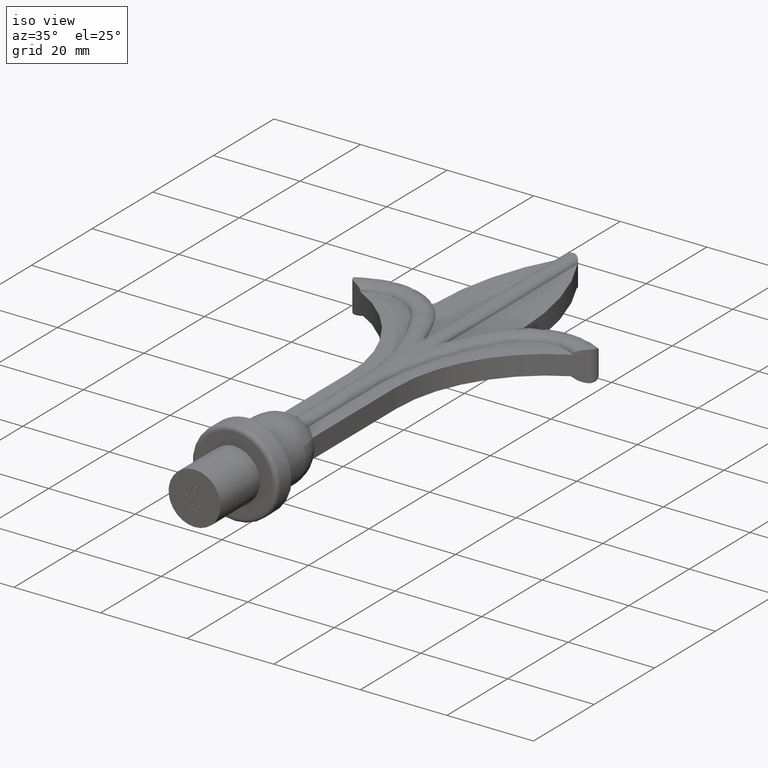
[diagram: clean part render]
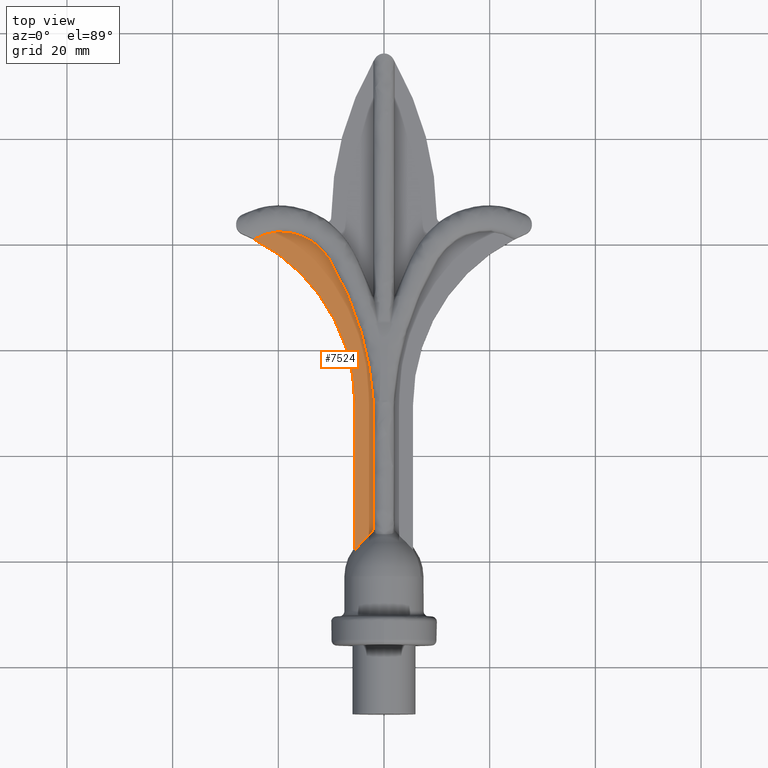
[diagram: tour spotlight — one face highlighted and labeled with its STEP entity id]
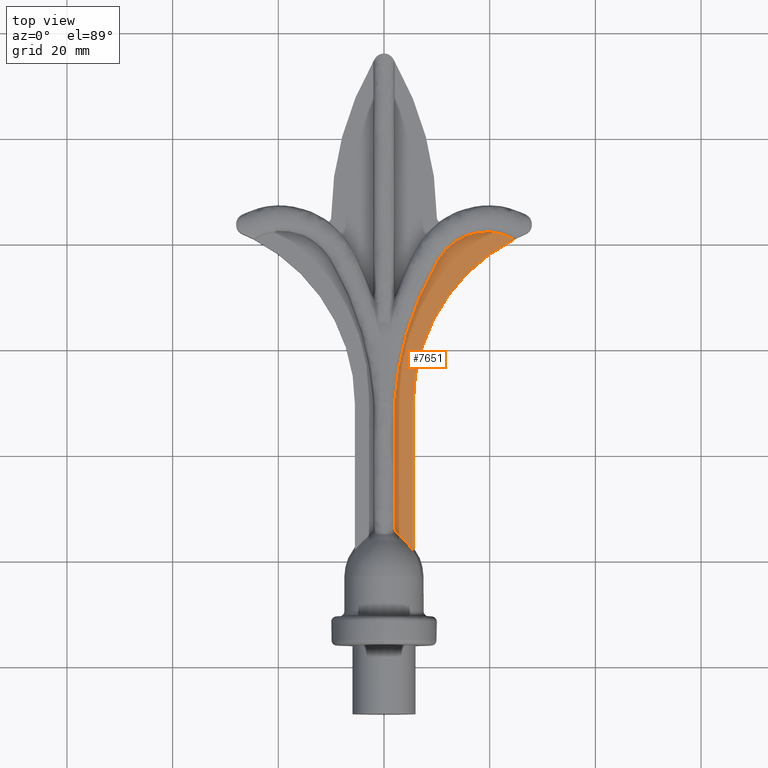
[diagram: tour spotlight — one face highlighted and labeled with its STEP entity id]
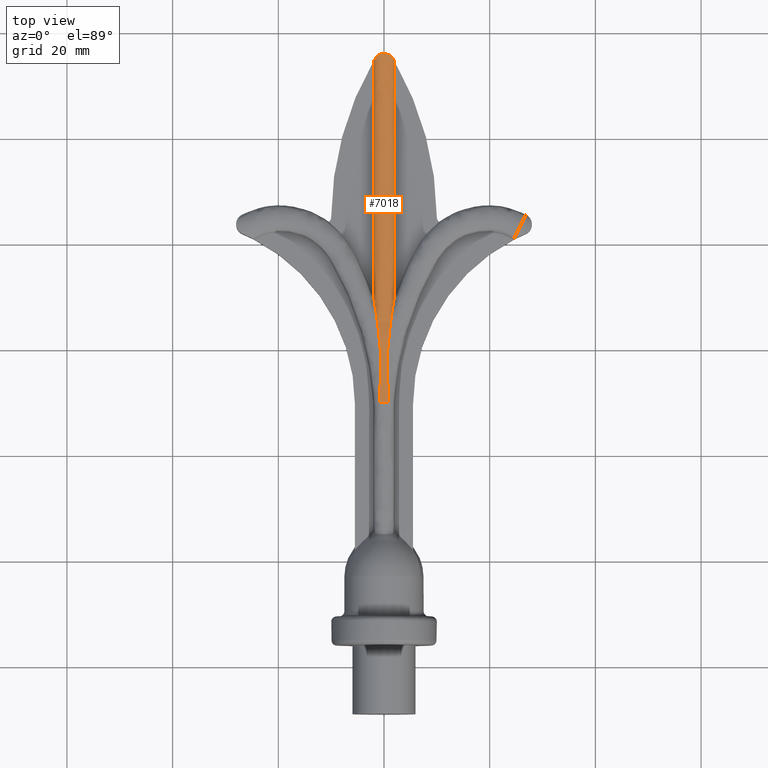
[diagram: tour spotlight — one face highlighted and labeled with its STEP entity id]
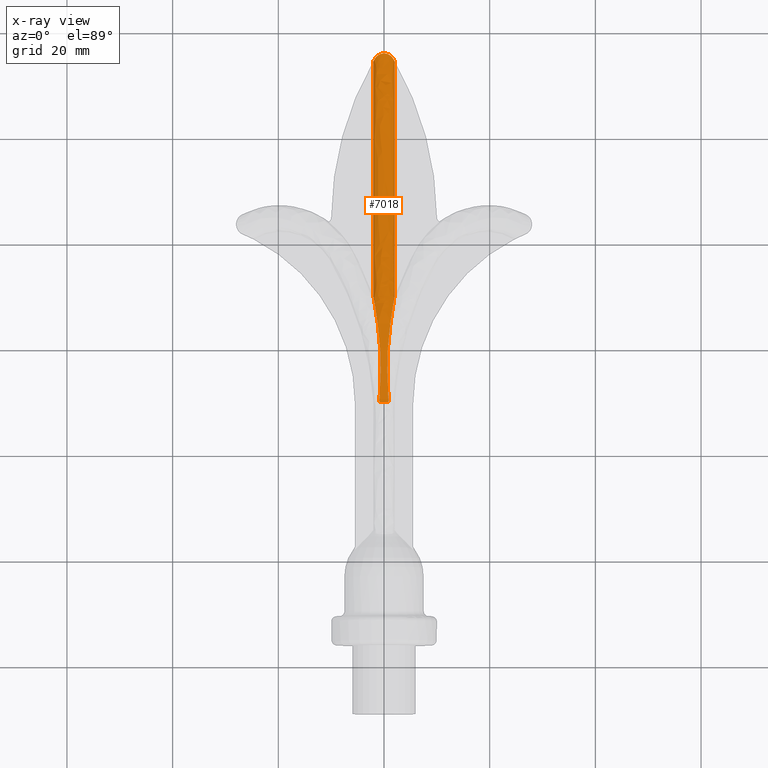
[diagram: x-ray of the same camera — body ghosted, this tour face saturated]
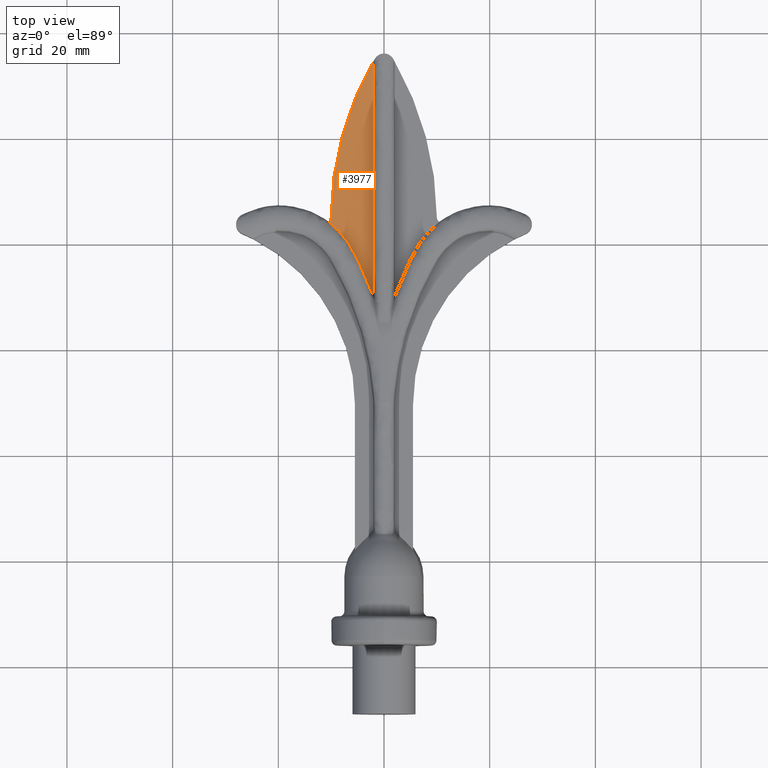
[diagram: tour spotlight — one face highlighted and labeled with its STEP entity id]
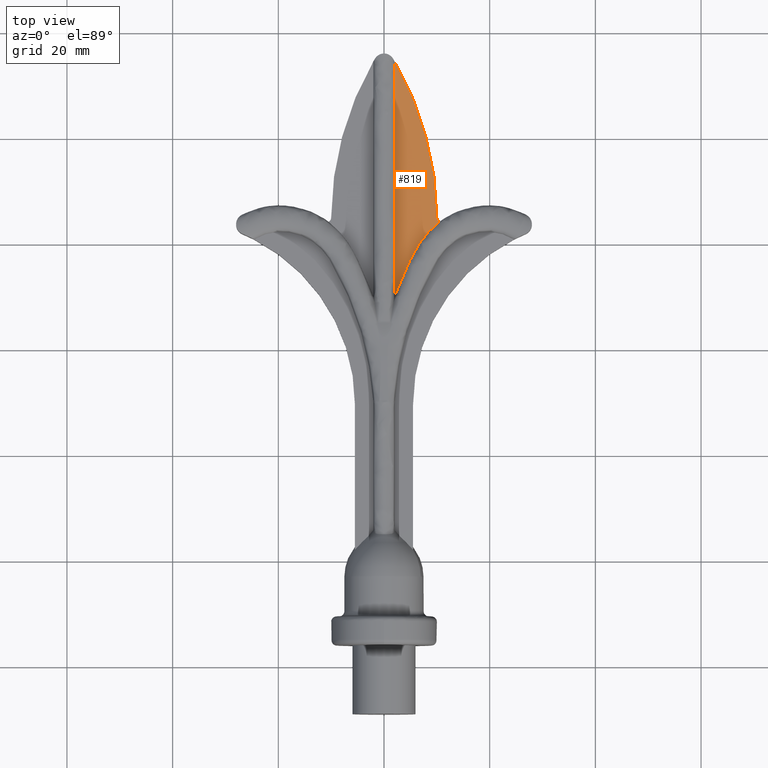
[diagram: tour spotlight — one face highlighted and labeled with its STEP entity id]
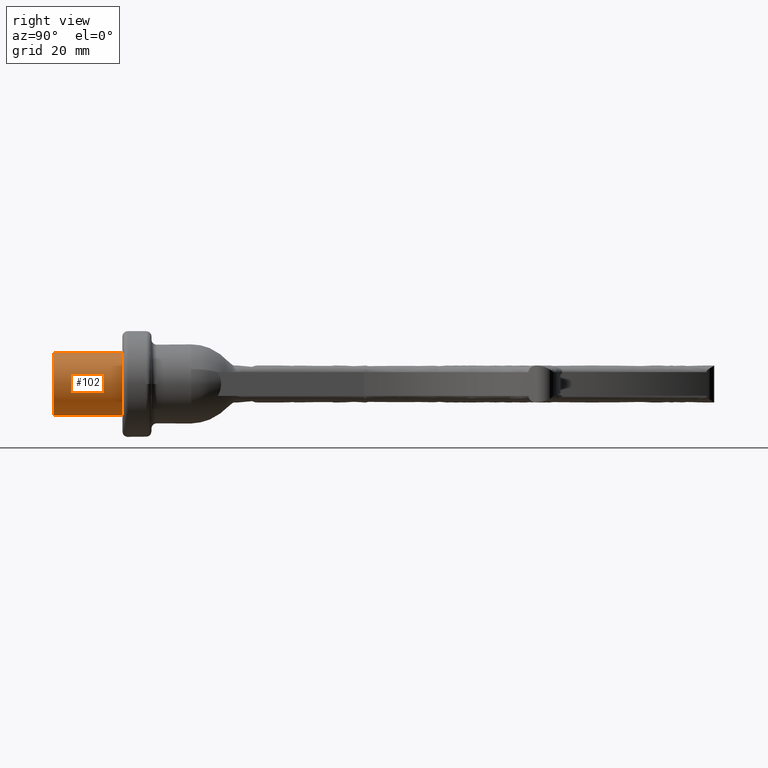
[diagram: tour spotlight — one face highlighted and labeled with its STEP entity id]
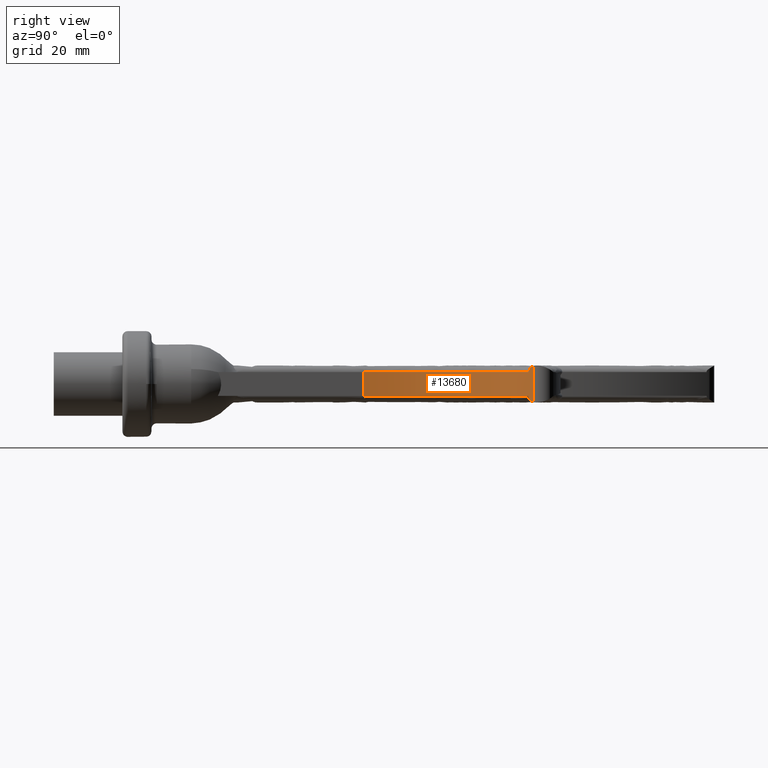
[diagram: tour spotlight — one face highlighted and labeled with its STEP entity id]
A machine part: a face-by-face anatomy tour. The part has 271 B-rep faces; the first image is the clean iso view, then the 7 largest visible faces are spotlighted one at a time (largest first), each with its STEP entity span.

Face 1 — top view, entity #7524. In plain terms, the highlighted planar face has unit normal (0, 0, -1).
Definition (entity closure, byte-faithful):
#134 = DIRECTION ( 'NONE',  ( 1.000000000000000000, 0.000000000000000000, 0.000000000000000000 ) ) ;
#661 = AXIS2_PLACEMENT_3D ( 'NONE', #6911, #7853, #134 ) ;
#676 = VERTEX_POINT ( 'NONE', #13874 ) ;
#781 = CARTESIAN_POINT ( 'NONE',  ( -14.76337510132776742, 21.17412777837628823, 2.249999999999997780 ) ) ;
#833 = CARTESIAN_POINT ( 'NONE',  ( -16.04736835590449573, 21.71527909538065515, 2.250000000000001776 ) ) ;
#882 = CARTESIAN_POINT ( 'NONE',  ( -1.999999999999999556, -34.15704797630281320, 2.250000000000000000 ) ) ;
#936 = CARTESIAN_POINT ( 'NONE',  ( -19.72413120687838273, 22.27856710356394032, 2.250000000000000000 ) ) ;
#982 = CARTESIAN_POINT ( 'NONE',  ( -13.14684680056945609, 20.21926707694568748, 2.250000000000000000 ) ) ;
#1074 = ORIENTED_EDGE ( 'NONE', *, *, #6359, .F. ) ;
#1264 = ORIENTED_EDGE ( 'NONE', *, *, #3003, .F. ) ;
#1325 = CARTESIAN_POINT ( 'NONE',  ( -4.183302087937226688, -36.50000059983787537, 2.250000000000000000 ) ) ;
#1376 = CARTESIAN_POINT ( 'NONE',  ( -5.102464988398763168, -37.40998315238685024, 2.250000000000000000 ) ) ;
#1439 = DIRECTION ( 'NONE',  ( 0.000000000000000000, -1.000000000000000000, 0.000000000000000000 ) ) ;
#1914 = EDGE_LOOP ( 'NONE', ( #3522, #9659, #1074, #13823, #14377, #1264 ) ) ;
#1934 = CARTESIAN_POINT ( 'NONE',  ( -21.12685482937731152, 22.14551076079942149, 2.249999999999998668 ) ) ;
#1978 = CARTESIAN_POINT ( 'NONE',  ( -5.981575602953722814, 8.281968525459351582, 2.250000000000000444 ) ) ;
#2035 = CARTESIAN_POINT ( 'NONE',  ( -23.77879521761375159, 21.27693553004967697, 2.249999999999995559 ) ) ;
#2088 = CARTESIAN_POINT ( 'NONE',  ( -11.14895665378619682, 18.26262553370780140, 2.250000000000009770 ) ) ;
#2134 = CARTESIAN_POINT ( 'NONE',  ( -2.000006093207118418, -9.999999999999998224, 2.250000000000134559 ) ) ;
#3003 = EDGE_CURVE ( 'NONE', #3359, #3795, #4806, .T. ) ;
#3067 = VECTOR ( 'NONE', #1439, 1000.000000000000000 ) ;
#3093 = CARTESIAN_POINT ( 'NONE',  ( -3.291206529742098930, -0.7055149666553134358, 2.249999999999999112 ) ) ;
#3103 = CARTESIAN_POINT ( 'NONE',  ( -3.773804087741206459, -36.15007595315656630, 2.250000000000000444 ) ) ;
#3188 = CARTESIAN_POINT ( 'NONE',  ( -24.19831013008752407, 21.06089616784457874, 2.250000000000000888 ) ) ;
#3233 = CARTESIAN_POINT ( 'NONE',  ( -2.132571979410398555, -8.126393834641481462, 2.250000000000269562 ) ) ;
#3253 = EDGE_CURVE ( 'NONE', #3359, #6767, #8502, .T. ) ;
#3359 = VERTEX_POINT ( 'NONE', #8422 ) ;
#3522 = ORIENTED_EDGE ( 'NONE', *, *, #3253, .T. ) ;
#3795 = VERTEX_POINT ( 'NONE', #5019 ) ;
#4090 = CARTESIAN_POINT ( 'NONE',  ( -4.183302087937226688, -36.50000059983787537, 2.250000000000000000 ) ) ;
#4267 = CARTESIAN_POINT ( 'NONE',  ( -24.61697314110987378, 20.84523556333763850, 2.254171646362637116 ) ) ;
#4292 = CARTESIAN_POINT ( 'NONE',  ( -5.499999999999991118, -10.34335035933024827, 2.250000000000000000 ) ) ;
#4359 = CARTESIAN_POINT ( 'NONE',  ( -23.13504436214022064, 21.56360661313473770, 2.249999999999995115 ) ) ;
#4638 = CARTESIAN_POINT ( 'NONE',  ( -4.663177568037719212, -36.93531094303977369, 2.250000000000000000 ) ) ;
#4806 = LINE ( 'NONE', #4292, #13085 ) ;
#5019 = CARTESIAN_POINT ( 'NONE',  ( -5.499999999999991118, -10.34335035933024827, 2.250000000000000000 ) ) ;
#5263 = CARTESIAN_POINT ( 'NONE',  ( -1.999999999999999556, -34.15704797630281320, 2.250000000000000000 ) ) ;
#5390 = CARTESIAN_POINT ( 'NONE',  ( -8.313999916599685847, 13.40892815939250760, 2.250000000000000444 ) ) ;
#5531 = CARTESIAN_POINT ( 'NONE',  ( -2.000006093207118418, -9.999999999999998224, 2.250000000000134559 ) ) ;
#5603 = DIRECTION ( 'NONE',  ( 1.000000000000000000, 0.000000000000000000, 0.000000000000000000 ) ) ;
#5680 = B_SPLINE_CURVE_WITH_KNOTS ( 'NONE', 3,
 ( #4267, #3188, #2035, #4359, #14411, #7616, #9947, #12152, #1934, #13352, #936, #12200, #6574, #9848, #7668, #833, #13450, #781, #14460, #982, #11015, #8846, #2088, #8794, #13247, #10046, #6678, #5390, #8742, #9997, #1978, #7570, #13299, #3093, #11065, #11157, #3233, #2134 ),
 .UNSPECIFIED., .F., .F.,
 ( 4, 2, 2, 2, 2, 2, 2, 2, 2, 2, 2, 2, 2, 2, 2, 2, 2, 2, 4 ),
 ( 1.599647270592087204E-07, 0.001412384367972311511, 0.002118496569594932512, 0.002824608771217553948, 0.004236833174462796385, 0.005649057577708038388, 0.007061281980953282127, 0.008473506384198524130, 0.009885730787443767001, 0.01129795519068900987, 0.01412240399717949388, 0.01553462840042473155, 0.01694685280366997268, 0.01977130161016044455, 0.02259575041665091641, 0.02824464802963186014, 0.03389354564261280733, 0.03954244325559375106, 0.04519134086857468785 ),
 .UNSPECIFIED. ) ;
#6359 = EDGE_CURVE ( 'NONE', #6958, #6951, #12355, .T. ) ;
#6574 = CARTESIAN_POINT ( 'NONE',  ( -18.32851251397507042, 22.22197669324629743, 2.249999999999997335 ) ) ;
#6678 = CARTESIAN_POINT ( 'NONE',  ( -9.169502339526454548, 15.08077979952537540, 2.250000000000001332 ) ) ;
#6767 = VERTEX_POINT ( 'NONE', #9509 ) ;
#6868 = PLANE ( 'NONE',  #661 ) ;
#6911 = CARTESIAN_POINT ( 'NONE',  ( 4.428493575385978843E-16, 54.00000000000000000, 2.250000000000000000 ) ) ;
#6951 = VERTEX_POINT ( 'NONE', #882 ) ;
#6958 = VERTEX_POINT ( 'NONE', #5531 ) ;
#6976 = EDGE_CURVE ( 'NONE', #676, #6958, #5680, .T. ) ;
#7524 = ADVANCED_FACE ( 'NONE', ( #14618 ), #6868, .F. ) ;
#7570 = CARTESIAN_POINT ( 'NONE',  ( -4.725754925820213614, 4.741299643282160581, 2.250000000000000000 ) ) ;
#7616 = CARTESIAN_POINT ( 'NONE',  ( -22.48052273371741450, 21.81134387635706062, 2.249999999999997780 ) ) ;
#7668 = CARTESIAN_POINT ( 'NONE',  ( -16.94133092385697736, 21.97797578725353773, 2.250000000000002220 ) ) ;
#7853 = DIRECTION ( 'NONE',  ( 0.000000000000000000, 0.000000000000000000, -1.000000000000000000 ) ) ;
#8094 = B_SPLINE_CURVE_WITH_KNOTS ( 'NONE', 3,
 ( #4090, #3103, #11971, #12164, #13107, #5263 ),
 .UNSPECIFIED., .F., .F.,
 ( 4, 2, 4 ),
 ( 3.049906857657526483E-07, 0.001601140582204586002, 0.003201976173723405927 ),
 .UNSPECIFIED. ) ;
#8179 = CARTESIAN_POINT ( 'NONE',  ( -5.309586929943846734, -37.66162718015450395, 2.250000000000000444 ) ) ;
#8422 = CARTESIAN_POINT ( 'NONE',  ( -5.499999999999995559, -37.92188935281078699, 2.250000000000000000 ) ) ;
#8502 = B_SPLINE_CURVE_WITH_KNOTS ( 'NONE', 3,
 ( #13773, #8179, #1376, #4638, #11576, #1325 ),
 .UNSPECIFIED., .F., .F.,
 ( 4, 2, 4 ),
 ( 0.005407699196652137469, 0.006367768122236821572, 0.007327837047821505675 ),
 .UNSPECIFIED. ) ;
#8742 = CARTESIAN_POINT ( 'NONE',  ( -7.897798575652227981, 12.56700727343634760, 2.250000000000000444 ) ) ;
#8794 = CARTESIAN_POINT ( 'NONE',  ( -10.59220191886514684, 17.50875892013686652, 2.250000000000008438 ) ) ;
#8846 = CARTESIAN_POINT ( 'NONE',  ( -11.45185035667598861, 18.62602086206925733, 2.250000000000036415 ) ) ;
#9101 = EDGE_CURVE ( 'NONE', #3795, #676, #9331, .T. ) ;
#9331 = CIRCLE ( 'NONE', #12717, 35.00000000000000000 ) ;
#9509 = CARTESIAN_POINT ( 'NONE',  ( -4.183302087937226688, -36.50000059983787537, 2.250000000000000000 ) ) ;
#9659 = ORIENTED_EDGE ( 'NONE', *, *, #12658, .T. ) ;
#9848 = CARTESIAN_POINT ( 'NONE',  ( -17.40307058314913391, 22.08023255681069585, 2.249999999999997335 ) ) ;
#9947 = CARTESIAN_POINT ( 'NONE',  ( -22.25867018858491164, 21.88062543786392666, 2.250000000000000444 ) ) ;
#9997 = CARTESIAN_POINT ( 'NONE',  ( -6.703008912361073435, 10.01589497759060521, 2.250000000000000000 ) ) ;
#10046 = CARTESIAN_POINT ( 'NONE',  ( -9.606056869822205968, 15.91418307517285236, 2.250000000000003553 ) ) ;
#10104 = DIRECTION ( 'NONE',  ( -0.000000000000000000, 0.000000000000000000, 1.000000000000000000 ) ) ;
#11015 = CARTESIAN_POINT ( 'NONE',  ( -12.42029254657042969, 19.63991412580459084, 2.250000000000036859 ) ) ;
#11065 = CARTESIAN_POINT ( 'NONE',  ( -2.919986943536946544, -2.547756134048474674, 2.250000000000001776 ) ) ;
#11157 = CARTESIAN_POINT ( 'NONE',  ( -2.337768139618806806, -6.257629043695626336, 2.250000000000001332 ) ) ;
#11215 = CARTESIAN_POINT ( 'NONE',  ( -40.49999999999999289, -10.34335035933024471, 2.250000000000000000 ) ) ;
#11576 = CARTESIAN_POINT ( 'NONE',  ( -4.430159336345254495, -36.71094530625479990, 2.250000000000000000 ) ) ;
#11971 = CARTESIAN_POINT ( 'NONE',  ( -3.391188477392503842, -35.77624323928026939, 2.250000000000000000 ) ) ;
#12077 = DIRECTION ( 'NONE',  ( 1.709774086213724751E-16, 1.000000000000000000, 0.000000000000000000 ) ) ;
#12152 = CARTESIAN_POINT ( 'NONE',  ( -21.58554758046971145, 22.06112451901470095, 2.250000000000000888 ) ) ;
#12164 = CARTESIAN_POINT ( 'NONE',  ( -2.668189967925956640, -34.99101781393565602, 2.250000000000000000 ) ) ;
#12200 = CARTESIAN_POINT ( 'NONE',  ( -18.79269039057967561, 22.26236030581272018, 2.250000000000000000 ) ) ;
#12355 = LINE ( 'NONE', #12704, #3067 ) ;
#12658 = EDGE_CURVE ( 'NONE', #6767, #6951, #8094, .T. ) ;
#12704 = CARTESIAN_POINT ( 'NONE',  ( -1.999999999999999556, 64.00000000000000000, 2.250000000000000000 ) ) ;
#12717 = AXIS2_PLACEMENT_3D ( 'NONE', #11215, #10104, #5603 ) ;
#13085 = VECTOR ( 'NONE', #12077, 1000.000000000000000 ) ;
#13107 = CARTESIAN_POINT ( 'NONE',  ( -2.328282237700450175, -34.57920250723412181, 2.250000000000000000 ) ) ;
#13247 = CARTESIAN_POINT ( 'NONE',  ( -10.33624176415837326, 17.11654057984210198, 2.250000000000003109 ) ) ;
#13299 = CARTESIAN_POINT ( 'NONE',  ( -4.191660543171381370, 2.939109039108050325, 2.250000000000000444 ) ) ;
#13352 = CARTESIAN_POINT ( 'NONE',  ( -20.19289493986696016, 22.25437071873053441, 2.249999999999998224 ) ) ;
#13450 = CARTESIAN_POINT ( 'NONE',  ( -15.61195498000185644, 21.55405025663272056, 2.249999999999998668 ) ) ;
#13773 = CARTESIAN_POINT ( 'NONE',  ( -5.499999999999995559, -37.92188935281078699, 2.250000000000000000 ) ) ;
#13823 = ORIENTED_EDGE ( 'NONE', *, *, #6976, .F. ) ;
#13874 = CARTESIAN_POINT ( 'NONE',  ( -24.61697314110987378, 20.84523556333763850, 2.254171646362637116 ) ) ;
#14377 = ORIENTED_EDGE ( 'NONE', *, *, #9101, .F. ) ;
#14411 = CARTESIAN_POINT ( 'NONE',  ( -22.91865372825261105, 21.65263170368233503, 2.249999999999997335 ) ) ;
#14460 = CARTESIAN_POINT ( 'NONE',  ( -14.34844947528617709, 20.95491050503660091, 2.249999999999999556 ) ) ;
#14618 = FACE_OUTER_BOUND ( 'NONE', #1914, .T. ) ;

Face 2 — top view, entity #7651. In plain terms, the highlighted planar face has unit normal (-0, 0, -1).
Definition (entity closure, byte-faithful):
#177 = CARTESIAN_POINT ( 'NONE',  ( 5.499999999999995559, -37.92188935281078699, 2.250000000000000000 ) ) ;
#327 = B_SPLINE_CURVE_WITH_KNOTS ( 'NONE', 3,
 ( #4505, #12297, #8937, #6717, #6763, #3381, #12349, #10037, #13542, #974, #3482, #8988, #5577, #1079, #1024, #13636, #8884, #5634, #1182, #13491, #2328, #14633, #2229, #6671, #11344, #6816, #9042, #10083, #10130, #2278, #7910, #2127, #6872, #1134, #4606, #11294, #10229, #11151 ),
 .UNSPECIFIED., .F., .F.,
 ( 4, 2, 2, 2, 2, 2, 2, 2, 2, 2, 2, 2, 2, 2, 2, 2, 2, 2, 4 ),
 ( 1.599647270592087204E-07, 0.001412384367972311511, 0.002118496569594932512, 0.002824608771217553948, 0.004236833174462796385, 0.005649057577708038388, 0.007061281980953282127, 0.008473506384198524130, 0.009885730787443767001, 0.01129795519068900987, 0.01412240399717949388, 0.01553462840042473155, 0.01694685280366997268, 0.01977130161016044455, 0.02259575041665091641, 0.02824464802963186014, 0.03389354564261280733, 0.03954244325559375106, 0.04519134086857468785 ),
 .UNSPECIFIED. ) ;
#373 = VERTEX_POINT ( 'NONE', #12512 ) ;
#423 = EDGE_CURVE ( 'NONE', #11730, #13810, #4653, .T. ) ;
#614 = CARTESIAN_POINT ( 'NONE',  ( 4.183302087937226688, -36.50000059983787537, 2.250000000000000000 ) ) ;
#794 = ORIENTED_EDGE ( 'NONE', *, *, #13163, .T. ) ;
#974 = CARTESIAN_POINT ( 'NONE',  ( 20.19289493986696016, 22.25437071873053441, 2.249999999999998224 ) ) ;
#1024 = CARTESIAN_POINT ( 'NONE',  ( 16.94133092385697736, 21.97797578725353773, 2.250000000000002220 ) ) ;
#1079 = CARTESIAN_POINT ( 'NONE',  ( 17.40307058314913391, 22.08023255681069585, 2.249999999999997335 ) ) ;
#1094 = ORIENTED_EDGE ( 'NONE', *, *, #5047, .F. ) ;
#1134 = CARTESIAN_POINT ( 'NONE',  ( 3.291206529742098930, -0.7055149666553134358, 2.249999999999999112 ) ) ;
#1182 = CARTESIAN_POINT ( 'NONE',  ( 14.34844947528617709, 20.95491050503660091, 2.249999999999999556 ) ) ;
#1333 = PLANE ( 'NONE',  #13634 ) ;
#1794 = B_SPLINE_CURVE_WITH_KNOTS ( 'NONE', 3,
 ( #2381, #2438, #10474, #12711, #3782, #11551 ),
 .UNSPECIFIED., .F., .F.,
 ( 4, 2, 4 ),
 ( 3.049906857657526483E-07, 0.001601140582204586002, 0.003201976173723405927 ),
 .UNSPECIFIED. ) ;
#2087 = DIRECTION ( 'NONE',  ( -0.000000000000000000, -0.000000000000000000, -1.000000000000000000 ) ) ;
#2127 = CARTESIAN_POINT ( 'NONE',  ( 4.725754925820213614, 4.741299643282160581, 2.250000000000000000 ) ) ;
#2229 = CARTESIAN_POINT ( 'NONE',  ( 11.14895665378619682, 18.26262553370780140, 2.250000000000009770 ) ) ;
#2253 = EDGE_LOOP ( 'NONE', ( #4181, #2423, #6245, #794, #5358, #1094 ) ) ;
#2278 = CARTESIAN_POINT ( 'NONE',  ( 6.703008912361073435, 10.01589497759060521, 2.250000000000000000 ) ) ;
#2328 = CARTESIAN_POINT ( 'NONE',  ( 12.42029254657042969, 19.63991412580459084, 2.250000000000036859 ) ) ;
#2381 = CARTESIAN_POINT ( 'NONE',  ( 4.183302087937226688, -36.50000059983787537, 2.250000000000000000 ) ) ;
#2423 = ORIENTED_EDGE ( 'NONE', *, *, #11565, .T. ) ;
#2438 = CARTESIAN_POINT ( 'NONE',  ( 3.773804087741206459, -36.15007595315656630, 2.250000000000000444 ) ) ;
#2575 = VECTOR ( 'NONE', #5218, 1000.000000000000000 ) ;
#2878 = VERTEX_POINT ( 'NONE', #8483 ) ;
#3110 = VERTEX_POINT ( 'NONE', #14480 ) ;
#3381 = CARTESIAN_POINT ( 'NONE',  ( 22.48052273371741450, 21.81134387635706062, 2.249999999999997780 ) ) ;
#3482 = CARTESIAN_POINT ( 'NONE',  ( 19.72413120687838273, 22.27856710356394032, 2.250000000000000000 ) ) ;
#3782 = CARTESIAN_POINT ( 'NONE',  ( 2.328282237700450175, -34.57920250723412181, 2.250000000000000000 ) ) ;
#3860 = CARTESIAN_POINT ( 'NONE',  ( 1.999999999999999556, -34.15704797630281320, 2.250000000000000000 ) ) ;
#3870 = CARTESIAN_POINT ( 'NONE',  ( 4.430159336345254495, -36.71094530625479990, 2.250000000000000000 ) ) ;
#4181 = ORIENTED_EDGE ( 'NONE', *, *, #7673, .F. ) ;
#4393 = AXIS2_PLACEMENT_3D ( 'NONE', #6825, #2087, #13401 ) ;
#4505 = CARTESIAN_POINT ( 'NONE',  ( 24.61697314110987378, 20.84523556333763850, 2.254171646362637116 ) ) ;
#4606 = CARTESIAN_POINT ( 'NONE',  ( 2.919986943536946544, -2.547756134048474674, 2.250000000000001776 ) ) ;
#4653 = LINE ( 'NONE', #5515, #5016 ) ;
#4759 = CARTESIAN_POINT ( 'NONE',  ( 5.309586929943846734, -37.66162718015450395, 2.250000000000000444 ) ) ;
#4900 = CARTESIAN_POINT ( 'NONE',  ( -4.428493575385978843E-16, 54.00000000000000000, 2.250000000000000000 ) ) ;
#5016 = VECTOR ( 'NONE', #14348, 1000.000000000000000 ) ;
#5047 = EDGE_CURVE ( 'NONE', #9974, #13810, #1794, .T. ) ;
#5218 = DIRECTION ( 'NONE',  ( -1.709774086213724751E-16, 1.000000000000000000, -0.000000000000000000 ) ) ;
#5358 = ORIENTED_EDGE ( 'NONE', *, *, #423, .T. ) ;
#5515 = CARTESIAN_POINT ( 'NONE',  ( 1.999999999999999556, 64.00000000000000000, 2.250000000000000000 ) ) ;
#5559 = LINE ( 'NONE', #7254, #2575 ) ;
#5577 = CARTESIAN_POINT ( 'NONE',  ( 18.32851251397507042, 22.22197669324629743, 2.249999999999997335 ) ) ;
#5634 = CARTESIAN_POINT ( 'NONE',  ( 14.76337510132776742, 21.17412777837628823, 2.249999999999997780 ) ) ;
#5652 = CARTESIAN_POINT ( 'NONE',  ( 2.000006093207118418, -9.999999999999998224, 2.250000000000134559 ) ) ;
#6010 = FACE_OUTER_BOUND ( 'NONE', #2253, .T. ) ;
#6178 = CARTESIAN_POINT ( 'NONE',  ( 4.663177568037719212, -36.93531094303977369, 2.250000000000000000 ) ) ;
#6245 = ORIENTED_EDGE ( 'NONE', *, *, #14481, .T. ) ;
#6415 = CIRCLE ( 'NONE', #4393, 35.00000000000000000 ) ;
#6671 = CARTESIAN_POINT ( 'NONE',  ( 10.59220191886514684, 17.50875892013686652, 2.250000000000008438 ) ) ;
#6717 = CARTESIAN_POINT ( 'NONE',  ( 23.13504436214022064, 21.56360661313473770, 2.249999999999995115 ) ) ;
#6763 = CARTESIAN_POINT ( 'NONE',  ( 22.91865372825261105, 21.65263170368233503, 2.249999999999997335 ) ) ;
#6816 = CARTESIAN_POINT ( 'NONE',  ( 9.606056869822205968, 15.91418307517285236, 2.250000000000003553 ) ) ;
#6825 = CARTESIAN_POINT ( 'NONE',  ( 40.49999999999999289, -10.34335035933024471, 2.250000000000000000 ) ) ;
#6872 = CARTESIAN_POINT ( 'NONE',  ( 4.191660543171381370, 2.939109039108050325, 2.250000000000000444 ) ) ;
#7254 = CARTESIAN_POINT ( 'NONE',  ( 5.499999999999991118, -10.34335035933024827, 2.250000000000000000 ) ) ;
#7458 = CARTESIAN_POINT ( 'NONE',  ( 4.183302087937226688, -36.50000059983787537, 2.250000000000000000 ) ) ;
#7651 = ADVANCED_FACE ( 'NONE', ( #6010 ), #1333, .F. ) ;
#7673 = EDGE_CURVE ( 'NONE', #373, #9974, #10233, .T. ) ;
#7910 = CARTESIAN_POINT ( 'NONE',  ( 5.981575602953722814, 8.281968525459351582, 2.250000000000000444 ) ) ;
#8483 = CARTESIAN_POINT ( 'NONE',  ( 5.499999999999991118, -10.34335035933024827, 2.250000000000000000 ) ) ;
#8884 = CARTESIAN_POINT ( 'NONE',  ( 15.61195498000185644, 21.55405025663272056, 2.249999999999998668 ) ) ;
#8937 = CARTESIAN_POINT ( 'NONE',  ( 23.77879521761375159, 21.27693553004967697, 2.249999999999995559 ) ) ;
#8988 = CARTESIAN_POINT ( 'NONE',  ( 18.79269039057967561, 22.26236030581272018, 2.250000000000000000 ) ) ;
#9042 = CARTESIAN_POINT ( 'NONE',  ( 9.169502339526454548, 15.08077979952537540, 2.250000000000001332 ) ) ;
#9974 = VERTEX_POINT ( 'NONE', #7458 ) ;
#10037 = CARTESIAN_POINT ( 'NONE',  ( 21.58554758046971145, 22.06112451901470095, 2.250000000000000888 ) ) ;
#10083 = CARTESIAN_POINT ( 'NONE',  ( 8.313999916599685847, 13.40892815939250760, 2.250000000000000444 ) ) ;
#10130 = CARTESIAN_POINT ( 'NONE',  ( 7.897798575652227981, 12.56700727343634760, 2.250000000000000444 ) ) ;
#10229 = CARTESIAN_POINT ( 'NONE',  ( 2.132571979410398555, -8.126393834641481462, 2.250000000000269562 ) ) ;
#10233 = B_SPLINE_CURVE_WITH_KNOTS ( 'NONE', 3,
 ( #177, #4759, #10706, #6178, #3870, #614 ),
 .UNSPECIFIED., .F., .F.,
 ( 4, 2, 4 ),
 ( 0.005407699196652137469, 0.006367768122236821572, 0.007327837047821505675 ),
 .UNSPECIFIED. ) ;
#10474 = CARTESIAN_POINT ( 'NONE',  ( 3.391188477392503842, -35.77624323928026939, 2.250000000000000000 ) ) ;
#10706 = CARTESIAN_POINT ( 'NONE',  ( 5.102464988398763168, -37.40998315238685024, 2.250000000000000000 ) ) ;
#11151 = CARTESIAN_POINT ( 'NONE',  ( 2.000006093207118418, -9.999999999999998224, 2.250000000000134559 ) ) ;
#11294 = CARTESIAN_POINT ( 'NONE',  ( 2.337768139618806806, -6.257629043695626336, 2.250000000000001332 ) ) ;
#11344 = CARTESIAN_POINT ( 'NONE',  ( 10.33624176415837326, 17.11654057984210198, 2.250000000000003109 ) ) ;
#11490 = DIRECTION ( 'NONE',  ( -1.000000000000000000, 0.000000000000000000, 0.000000000000000000 ) ) ;
#11551 = CARTESIAN_POINT ( 'NONE',  ( 1.999999999999999556, -34.15704797630281320, 2.250000000000000000 ) ) ;
#11565 = EDGE_CURVE ( 'NONE', #373, #2878, #5559, .T. ) ;
#11584 = DIRECTION ( 'NONE',  ( -0.000000000000000000, 0.000000000000000000, -1.000000000000000000 ) ) ;
#11730 = VERTEX_POINT ( 'NONE', #5652 ) ;
#12297 = CARTESIAN_POINT ( 'NONE',  ( 24.19831013008752407, 21.06089616784457874, 2.250000000000000888 ) ) ;
#12349 = CARTESIAN_POINT ( 'NONE',  ( 22.25867018858491164, 21.88062543786392666, 2.250000000000000444 ) ) ;
#12512 = CARTESIAN_POINT ( 'NONE',  ( 5.499999999999995559, -37.92188935281078699, 2.250000000000000000 ) ) ;
#12711 = CARTESIAN_POINT ( 'NONE',  ( 2.668189967925956640, -34.99101781393565602, 2.250000000000000000 ) ) ;
#13163 = EDGE_CURVE ( 'NONE', #3110, #11730, #327, .T. ) ;
#13401 = DIRECTION ( 'NONE',  ( -1.000000000000000000, 0.000000000000000000, 0.000000000000000000 ) ) ;
#13491 = CARTESIAN_POINT ( 'NONE',  ( 13.14684680056945609, 20.21926707694568748, 2.250000000000000000 ) ) ;
#13542 = CARTESIAN_POINT ( 'NONE',  ( 21.12685482937731152, 22.14551076079942149, 2.249999999999998668 ) ) ;
#13634 = AXIS2_PLACEMENT_3D ( 'NONE', #4900, #11584, #11490 ) ;
#13636 = CARTESIAN_POINT ( 'NONE',  ( 16.04736835590449573, 21.71527909538065515, 2.250000000000001776 ) ) ;
#13810 = VERTEX_POINT ( 'NONE', #3860 ) ;
#14348 = DIRECTION ( 'NONE',  ( 0.000000000000000000, -1.000000000000000000, 0.000000000000000000 ) ) ;
#14480 = CARTESIAN_POINT ( 'NONE',  ( 24.61697314110987378, 20.84523556333763850, 2.254171646362637116 ) ) ;
#14481 = EDGE_CURVE ( 'NONE', #2878, #3110, #6415, .T. ) ;
#14633 = CARTESIAN_POINT ( 'NONE',  ( 11.45185035667598861, 18.62602086206925733, 2.250000000000036415 ) ) ;

Face 3 — top view, entity #7018. An x-ray twin of the same camera follows (body ghosted, this face saturated) — the face is partly hidden behind the body. In plain terms, the highlighted face is a freeform B-spline surface patch.
Definition (entity closure, byte-faithful):
#99 = ORIENTED_EDGE ( 'NONE', *, *, #9043, .F. ) ;
#107 = CARTESIAN_POINT ( 'NONE',  ( -2.000000000000001776, 54.53942867862023292, 2.250000000000000000 ) ) ;
#124 = CARTESIAN_POINT ( 'NONE',  ( 0.3581256615364734608, 55.97599526450504470, 3.484997040315650718 ) ) ;
#193 = CARTESIAN_POINT ( 'NONE',  ( 1.822275046699542647E-13, -9.999899012340767612, 3.500002856754159009 ) ) ;
#356 = B_SPLINE_CURVE_WITH_KNOTS ( 'NONE', 3,
 ( #6241, #11652, #582, #5065, #14030, #9641, #14074, #12911 ),
 .UNSPECIFIED., .F., .F.,
 ( 4, 2, 2, 4 ),
 ( 0.000000000000000000, 0.0004356508581068493490, 0.0006534762871602739151, 0.0008713017162136984812 ),
 .UNSPECIFIED. ) ;
#384 = CARTESIAN_POINT ( 'NONE',  ( 1.664991924502235321, 8.081150150582923075, 2.946182603805149736 ) ) ;
#430 = CARTESIAN_POINT ( 'NONE',  ( 0.8170894112943596355, 1.555991863244106321, 3.392483868747679487 ) ) ;
#462 = VERTEX_POINT ( 'NONE', #5568 ) ;
#582 = CARTESIAN_POINT ( 'NONE',  ( 1.850982356452279154, 54.79698248380606174, 2.735571422696121413 ) ) ;
#706 = CARTESIAN_POINT ( 'NONE',  ( -0.8540926491550773214, -9.653044381900174997, 3.380290621349647751 ) ) ;
#747 = CARTESIAN_POINT ( 'NONE',  ( -1.735392698828009728, 8.511043698880389030, 2.879936702575515373 ) ) ;
#792 = CARTESIAN_POINT ( 'NONE',  ( -1.999999999999999556, 10.07069710352590342, 2.305787425040668914 ) ) ;
#799 = CARTESIAN_POINT ( 'NONE',  ( -1.999999999999999556, 10.07148951500465373, 2.250000000000000000 ) ) ;
#818 = VERTEX_POINT ( 'NONE', #799 ) ;
#846 = CARTESIAN_POINT ( 'NONE',  ( -0.8490466700974876879, -9.790351625994269114, 3.381771460446505895 ) ) ;
#856 = B_SPLINE_CURVE_WITH_KNOTS ( 'NONE', 3,
 ( #5712, #14622, #12536, #11282, #1219, #9129, #10116, #7892, #8034, #13476, #124, #2313, #11436, #3419, #4546, #10217, #5665, #10165 ),
 .UNSPECIFIED., .F., .F.,
 ( 4, 2, 2, 2, 2, 2, 2, 2, 4 ),
 ( -0.002185531039107428339, -0.001640531938757584882, -0.001095532838407741643, -0.0005505337380578984030, -5.534637708054946509E-06, 0.0005394644626417885100, 0.001084463562991631533, 0.001629462663341474989, 0.002174461763691318446 ),
 .UNSPECIFIED. ) ;
#895 = CARTESIAN_POINT ( 'NONE',  ( -0.6888457618797619864, -6.357268802590827050, 3.423652526577683819 ) ) ;
#1007 = EDGE_CURVE ( 'NONE', #8648, #14465, #11021, .T. ) ;
#1020 = CARTESIAN_POINT ( 'NONE',  ( -1.850982356452279154, 54.79698248380606174, 2.735571422696121413 ) ) ;
#1219 = CARTESIAN_POINT ( 'NONE',  ( -1.176637880876797659, 55.62646071456584451, 3.266537946603648379 ) ) ;
#1364 = ORIENTED_EDGE ( 'NONE', *, *, #3746, .F. ) ;
#1520 = VERTEX_POINT ( 'NONE', #107 ) ;
#1544 = CARTESIAN_POINT ( 'NONE',  ( 1.093026864984118385, 4.179168361879508353, 3.300909164943323759 ) ) ;
#1592 = CARTESIAN_POINT ( 'NONE',  ( 1.999999999999999556, 10.07069710352590342, 2.305787425040668914 ) ) ;
#1638 = CARTESIAN_POINT ( 'NONE',  ( 0.7984979242254491849, -8.554332492686521405, 3.396158515704875480 ) ) ;
#1743 = CARTESIAN_POINT ( 'NONE',  ( 0.8247743503367599427, -8.993529385132280396, 3.388833680604617093 ) ) ;
#1859 = CARTESIAN_POINT ( 'NONE',  ( -1.930480022884340396, 9.665981623857556215, 2.578859183070260741 ) ) ;
#1902 = CARTESIAN_POINT ( 'NONE',  ( -1.993991028183335956, 10.03549112986107339, 2.353936078871035065 ) ) ;
#1944 = CARTESIAN_POINT ( 'NONE',  ( -1.972408887254156529, 9.909815113014309063, 2.458679044196641517 ) ) ;
#2281 = B_SPLINE_CURVE_WITH_KNOTS ( 'NONE', 3,
 ( #10080, #10032, #1020, #4253, #12140, #8783, #12345, #13284 ),
 .UNSPECIFIED., .F., .F.,
 ( 4, 2, 2, 4 ),
 ( 0.000000000000000000, 0.0004356508581068493490, 0.0006534762871602739151, 0.0008713017162136984812 ),
 .UNSPECIFIED. ) ;
#2313 = CARTESIAN_POINT ( 'NONE',  ( 0.7073155059944646883, 55.87949888262192388, 3.424686801638704203 ) ) ;
#2627 = ORIENTED_EDGE ( 'NONE', *, *, #11665, .T. ) ;
#2643 = CARTESIAN_POINT ( 'NONE',  ( 0.4406985737824424820, -9.987347466049293132, 3.471261713992855213 ) ) ;
#2687 = CARTESIAN_POINT ( 'NONE',  ( 0.8490466700974876879, -9.790351625994269114, 3.381771460446505895 ) ) ;
#2735 = CARTESIAN_POINT ( 'NONE',  ( 1.877855878971818049, 9.358471240947849878, 2.686654988717040116 ) ) ;
#3057 = VERTEX_POINT ( 'NONE', #6509 ) ;
#3104 = CARTESIAN_POINT ( 'NONE',  ( -0.6224160360983791440, -3.717894380796773035, 3.437934225544267530 ) ) ;
#3419 = CARTESIAN_POINT ( 'NONE',  ( 1.170606241921285706, 55.63099406728026253, 3.269371292050158750 ) ) ;
#3452 = ORIENTED_EDGE ( 'NONE', *, *, #11267, .F. ) ;
#3661 = VECTOR ( 'NONE', #4735, 1000.000000000000000 ) ;
#3746 = EDGE_CURVE ( 'NONE', #462, #3057, #356, .T. ) ;
#3785 = CARTESIAN_POINT ( 'NONE',  ( 0.6838425788776076875, -9.964105240841302447, 3.424794776173007538 ) ) ;
#3836 = CARTESIAN_POINT ( 'NONE',  ( 1.980305355098926245, 9.955703304162607736, 2.429022797495678621 ) ) ;
#3973 = CARTESIAN_POINT ( 'NONE',  ( 1.459315394766676377, 6.787959087721364249, 3.116524587594440288 ) ) ;
#4023 = CARTESIAN_POINT ( 'NONE',  ( 1.993991028183335956, 10.03549112986107339, 2.353936078871035065 ) ) ;
#4137 = CARTESIAN_POINT ( 'NONE',  ( -0.6352422687926116973, -4.598246563847242285, 3.435405058613094642 ) ) ;
#4220 = CARTESIAN_POINT ( 'NONE',  ( -2.000000000000000000, -10.39669103303532616, 4.750000000000001776 ) ) ;
#4253 = CARTESIAN_POINT ( 'NONE',  ( -1.930227607325605055, 54.66034588685432283, 2.581694426556140343 ) ) ;
#4278 = CARTESIAN_POINT ( 'NONE',  ( -0.7626597695790220399, -9.946780513416685565, 3.405681332686232299 ) ) ;
#4316 = CARTESIAN_POINT ( 'NONE',  ( 1.999999999999999556, -10.39669103303533149, 2.249999999999998668 ) ) ;
#4546 = CARTESIAN_POINT ( 'NONE',  ( 1.306571825642256934, 55.52346403195063829, 3.202165019969589466 ) ) ;
#4735 = DIRECTION ( 'NONE',  ( 0.000000000000000000, -1.000000000000000000, 0.000000000000000000 ) ) ;
#4884 = LINE ( 'NONE', #8017, #3661 ) ;
#4964 = CARTESIAN_POINT ( 'NONE',  ( 0.8473593562508177079, -9.818020446068674190, 3.382270362854599366 ) ) ;
#5012 = CARTESIAN_POINT ( 'NONE',  ( 0.9875871604779276058, 3.306007631506265643, 3.338612280648417752 ) ) ;
#5061 = CARTESIAN_POINT ( 'NONE',  ( 1.999999999999999556, 10.07148951500465373, 2.250000000000000000 ) ) ;
#5065 = CARTESIAN_POINT ( 'NONE',  ( 1.930227607325605055, 54.66034588685432283, 2.581694426556140343 ) ) ;
#5089 = CARTESIAN_POINT ( 'NONE',  ( -0.1106306295682388807, -10.00077037569061389, 3.500000000000001332 ) ) ;
#5148 = CARTESIAN_POINT ( 'NONE',  ( 1.735392698828009728, 8.511043698880389030, 2.879936702575515373 ) ) ;
#5340 = CARTESIAN_POINT ( 'NONE',  ( -2.000000000000000444, 56.39600412146939590, 2.250000000000000000 ) ) ;
#5354 = CARTESIAN_POINT ( 'NONE',  ( -0.6347639814880823295, -1.958469581052590502, 3.435379189034770686 ) ) ;
#5401 = CARTESIAN_POINT ( 'NONE',  ( -0.9875871604779276058, 3.306007631506265643, 3.338612280648417752 ) ) ;
#5568 = CARTESIAN_POINT ( 'NONE',  ( 1.724093592891743798, 55.01365737946784407, 2.883535862167410091 ) ) ;
#5665 = CARTESIAN_POINT ( 'NONE',  ( 1.642019067612705774, 55.15325500489776545, 2.970784378061104736 ) ) ;
#5712 = CARTESIAN_POINT ( 'NONE',  ( -1.724093592891743798, 55.01365737946784407, 2.883535862167410091 ) ) ;
#5810 = VECTOR ( 'NONE', #7587, 1000.000000000000000 ) ;
#6166 = CARTESIAN_POINT ( 'NONE',  ( -1.724093592891743798, 55.01365737946784407, 2.883535862167410091 ) ) ;
#6241 = CARTESIAN_POINT ( 'NONE',  ( 1.724093592891743798, 55.01365737946784407, 2.883535862167410091 ) ) ;
#6357 = CARTESIAN_POINT ( 'NONE',  ( -0.8247743503367599427, -8.993529385132280396, 3.388833680604617093 ) ) ;
#6446 = CARTESIAN_POINT ( 'NONE',  ( -0.6598787791841492778, -1.079179211605334032, 3.430395813971617081 ) ) ;
#6456 = B_SPLINE_CURVE_WITH_KNOTS ( 'NONE', 3,
 ( #11823, #5089, #14006, #9856, #8618, #14282, #13108, #4278, #9809, #7626, #7544, #7580, #846, #706, #8754, #6357, #10891, #13312, #895, #4137, #3104, #5354, #6446, #7493, #12013, #5401, #10845, #12165, #14327, #7682, #747, #13259, #12061, #1859, #8664, #1944, #10980, #1902, #792, #8705 ),
 .UNSPECIFIED., .F., .F.,
 ( 4, 2, 2, 2, 2, 2, 2, 2, 2, 2, 2, 2, 2, 2, 2, 2, 2, 2, 2, 4 ),
 ( 0.000000000000000000, 0.0003313910331067513346, 0.0006627820662135026691, 0.0007456298244901904621, 0.0008284775827668783635, 0.0009113253410435662649, 0.0009941730993202539494, 0.001325564132426989509, 0.002651128264853936951, 0.005302256529707827064, 0.007953384794561715876, 0.01060451305941560556, 0.01325564132426949523, 0.01590676958912338665, 0.01855789785397727806, 0.01988346198640422030, 0.02054624405261769662, 0.02087763508572443305, 0.02104333060227779953, 0.02120902611883116254 ),
 .UNSPECIFIED. ) ;
#6509 = CARTESIAN_POINT ( 'NONE',  ( 2.000000000000001776, 54.53942867862023292, 2.250000000000000000 ) ) ;
#7018 = ADVANCED_FACE ( 'NONE', ( #9899 ), #14645, .T. ) ;
#7231 = CARTESIAN_POINT ( 'NONE',  ( 0.6347639814880823295, -1.958469581052590502, 3.435379189034770686 ) ) ;
#7344 = EDGE_CURVE ( 'NONE', #13842, #1520, #2281, .T. ) ;
#7493 = CARTESIAN_POINT ( 'NONE',  ( -0.7510959576214362166, 0.6784713788253978750, 3.408904152439301338 ) ) ;
#7544 = CARTESIAN_POINT ( 'NONE',  ( -0.8373438108153099524, -9.872255483347045057, 3.385177200527288210 ) ) ;
#7580 = CARTESIAN_POINT ( 'NONE',  ( -0.8473593562508177079, -9.818020446068674190, 3.382270362854599366 ) ) ;
#7587 = DIRECTION ( 'NONE',  ( 0.000000000000000000, -1.000000000000000000, 0.000000000000000000 ) ) ;
#7626 = CARTESIAN_POINT ( 'NONE',  ( -0.8281505544419913711, -9.899748878370399297, 3.387882132643734945 ) ) ;
#7682 = CARTESIAN_POINT ( 'NONE',  ( -1.664991924502235321, 8.081150150582923075, 2.946182603805149736 ) ) ;
#7768 = CARTESIAN_POINT ( 'NONE',  ( 2.000000000000003109, 56.39600412146940300, 4.750000000000000888 ) ) ;
#7842 = EDGE_CURVE ( 'NONE', #3057, #14465, #14104, .T. ) ;
#7892 = CARTESIAN_POINT ( 'NONE',  ( -0.3703316955980012204, 55.97354666467874296, 3.483466665423450070 ) ) ;
#8017 = CARTESIAN_POINT ( 'NONE',  ( -1.999999999999999556, 64.00000000000000000, 2.250000000000000000 ) ) ;
#8034 = CARTESIAN_POINT ( 'NONE',  ( -0.1898766100308335869, 55.99947489499103170, 3.499671809369394815 ) ) ;
#8251 = CARTESIAN_POINT ( 'NONE',  ( 0.1106306295682388807, -10.00077037569061389, 3.500000000000001332 ) ) ;
#8344 = CARTESIAN_POINT ( 'NONE',  ( 0.6598787791841492778, -1.079179211605334032, 3.430395813971617081 ) ) ;
#8397 = CARTESIAN_POINT ( 'NONE',  ( 0.8540926491550773214, -9.653044381900174997, 3.380290621349647751 ) ) ;
#8446 = CARTESIAN_POINT ( 'NONE',  ( 0.7510959576214362166, 0.6784713788253978750, 3.408904152439301338 ) ) ;
#8489 = CARTESIAN_POINT ( 'NONE',  ( 0.7297521396862751697, -7.236219239692930572, 3.414234933230396951 ) ) ;
#8618 = CARTESIAN_POINT ( 'NONE',  ( -0.5497574092091946918, -9.981587840122758237, 3.453942945078218862 ) ) ;
#8648 = VERTEX_POINT ( 'NONE', #193 ) ;
#8664 = CARTESIAN_POINT ( 'NONE',  ( -1.947945627165463600, 9.767581954121022036, 2.538460223229800583 ) ) ;
#8695 = CARTESIAN_POINT ( 'NONE',  ( 2.000000000000003109, -10.39669103303532616, 4.750000000000000888 ) ) ;
#8705 = CARTESIAN_POINT ( 'NONE',  ( -1.999999999999999556, 10.07148951500465373, 2.250000000000000000 ) ) ;
#8754 = CARTESIAN_POINT ( 'NONE',  ( -0.8481300889120864106, -9.543023374926791647, 3.382044246763818762 ) ) ;
#8762 = CARTESIAN_POINT ( 'NONE',  ( 1.999999999999999556, 64.00000000000000000, 2.250000000000000000 ) ) ;
#8783 = CARTESIAN_POINT ( 'NONE',  ( -1.989075041283351997, 54.55841827705590674, 2.395915365853740209 ) ) ;
#9035 = ORIENTED_EDGE ( 'NONE', *, *, #7344, .T. ) ;
#9043 = EDGE_CURVE ( 'NONE', #8648, #818, #6456, .T. ) ;
#9129 = CARTESIAN_POINT ( 'NONE',  ( -0.8802760122791115638, 55.80415223884966025, 3.377595149281037212 ) ) ;
#9324 = EDGE_LOOP ( 'NONE', ( #3452, #9035, #2627, #99, #12827, #11397, #1364 ) ) ;
#9394 = CARTESIAN_POINT ( 'NONE',  ( 0.2210169062726403677, -9.997994292929650584, 3.494292596104019655 ) ) ;
#9443 = CARTESIAN_POINT ( 'NONE',  ( 1.930480022884340396, 9.665981623857556215, 2.578859183070260741 ) ) ;
#9490 = CARTESIAN_POINT ( 'NONE',  ( 1.842035217767148847, 9.147299553863454946, 2.739645986121322263 ) ) ;
#9641 = CARTESIAN_POINT ( 'NONE',  ( 1.989075041283351997, 54.55841827705590674, 2.395915365853740209 ) ) ;
#9809 = CARTESIAN_POINT ( 'NONE',  ( -0.7889487505574711568, -9.937701954723015874, 3.398711765576718058 ) ) ;
#9856 = CARTESIAN_POINT ( 'NONE',  ( -0.4406985737824424820, -9.987347466049293132, 3.471261713992855213 ) ) ;
#9899 = FACE_OUTER_BOUND ( 'NONE', #9324, .T. ) ;
#10032 = CARTESIAN_POINT ( 'NONE',  ( -1.789371349858675853, 54.90262877668284602, 2.814142985426777877 ) ) ;
#10080 = CARTESIAN_POINT ( 'NONE',  ( -1.724093592891743798, 55.01365737946784407, 2.883535862167410091 ) ) ;
#10116 = CARTESIAN_POINT ( 'NONE',  ( -0.7148567543895927301, 55.87643593632522965, 3.422772460202464728 ) ) ;
#10165 = CARTESIAN_POINT ( 'NONE',  ( 1.724093592891743798, 55.01365737946784407, 2.883535862167410091 ) ) ;
#10217 = CARTESIAN_POINT ( 'NONE',  ( 1.541835812378901771, 55.28484042584101132, 3.053025266151142336 ) ) ;
#10524 = CARTESIAN_POINT ( 'NONE',  ( 0.5497574092091946918, -9.981587840122758237, 3.453942945078218862 ) ) ;
#10577 = CARTESIAN_POINT ( 'NONE',  ( 1.972408887254156529, 9.909815113014309063, 2.458679044196641517 ) ) ;
#10622 = CARTESIAN_POINT ( 'NONE',  ( 0.6888457618797619864, -6.357268802590827050, 3.423652526577683819 ) ) ;
#10845 = CARTESIAN_POINT ( 'NONE',  ( -1.093026864984118385, 4.179168361879508353, 3.300909164943323759 ) ) ;
#10891 = CARTESIAN_POINT ( 'NONE',  ( -0.7984979242254491849, -8.554332492686521405, 3.396158515704875480 ) ) ;
#10970 = CARTESIAN_POINT ( 'NONE',  ( -2.000000000000000000, 56.39600412146940300, 4.750000000000001776 ) ) ;
#10980 = CARTESIAN_POINT ( 'NONE',  ( -1.980305355098926245, 9.955703304162607736, 2.429022797495678621 ) ) ;
#11021 = B_SPLINE_CURVE_WITH_KNOTS ( 'NONE', 3,
 ( #12767, #8251, #9394, #2643, #10524, #3785, #11648, #13750, #13939, #13981, #14121, #4964, #2687, #8397, #12860, #1743, #1638, #8489, #10622, #13042, #11842, #7231, #8344, #8446, #430, #5012, #1544, #11894, #3973, #384, #5148, #9490, #2735, #9443, #11691, #10577, #3836, #4023, #1592, #5061 ),
 .UNSPECIFIED., .F., .F.,
 ( 4, 2, 2, 2, 2, 2, 2, 2, 2, 2, 2, 2, 2, 2, 2, 2, 2, 2, 2, 4 ),
 ( 0.000000000000000000, 0.0003313910331067513346, 0.0006627820662135026691, 0.0007456298244901904621, 0.0008284775827668783635, 0.0009113253410435662649, 0.0009941730993202539494, 0.001325564132426989509, 0.002651128264853936951, 0.005302256529707827064, 0.007953384794561715876, 0.01060451305941560556, 0.01325564132426949523, 0.01590676958912338665, 0.01855789785397727806, 0.01988346198640422030, 0.02054624405261769662, 0.02087763508572443305, 0.02104333060227779953, 0.02120902611883116254 ),
 .UNSPECIFIED. ) ;
#11267 = EDGE_CURVE ( 'NONE', #13842, #462, #856, .T. ) ;
#11282 = CARTESIAN_POINT ( 'NONE',  ( -1.312056774922601310, 55.51852513563219560, 3.199078209770122250 ) ) ;
#11397 = ORIENTED_EDGE ( 'NONE', *, *, #7842, .F. ) ;
#11436 = CARTESIAN_POINT ( 'NONE',  ( 0.8704066831874451848, 55.80910276849912321, 3.380689230311936022 ) ) ;
#11648 = CARTESIAN_POINT ( 'NONE',  ( 0.7105884268252442570, -9.960016484905132472, 3.418574239651624769 ) ) ;
#11652 = CARTESIAN_POINT ( 'NONE',  ( 1.789371349858675853, 54.90262877668284602, 2.814142985426777877 ) ) ;
#11665 = EDGE_CURVE ( 'NONE', #1520, #818, #4884, .T. ) ;
#11691 = CARTESIAN_POINT ( 'NONE',  ( 1.947945627165463600, 9.767581954121022036, 2.538460223229800583 ) ) ;
#11823 = CARTESIAN_POINT ( 'NONE',  ( 1.822275046699542647E-13, -9.999899012340767612, 3.500002856754159009 ) ) ;
#11842 = CARTESIAN_POINT ( 'NONE',  ( 0.6224160360983791440, -3.717894380796773035, 3.437934225544267530 ) ) ;
#11894 = CARTESIAN_POINT ( 'NONE',  ( 1.329092653989006223, 5.919913474722485525, 3.188647262910140778 ) ) ;
#12013 = CARTESIAN_POINT ( 'NONE',  ( -0.8170894112943596355, 1.555991863244106321, 3.392483868747679487 ) ) ;
#12061 = CARTESIAN_POINT ( 'NONE',  ( -1.877855878971818049, 9.358471240947849878, 2.686654988717040116 ) ) ;
#12140 = CARTESIAN_POINT ( 'NONE',  ( -1.953902939273067352, 54.61937887632075928, 2.524707611875042890 ) ) ;
#12165 = CARTESIAN_POINT ( 'NONE',  ( -1.329092653989006223, 5.919913474722485525, 3.188647262910140778 ) ) ;
#12306 = CARTESIAN_POINT ( 'NONE',  ( 1.999999999999999556, 56.39600412146939590, 2.249999999999998668 ) ) ;
#12345 = CARTESIAN_POINT ( 'NONE',  ( -1.999999999999984901, 54.53942867861968580, 2.324057889797708665 ) ) ;
#12536 = CARTESIAN_POINT ( 'NONE',  ( -1.543898910981157391, 55.28210285111542532, 3.051314281947133722 ) ) ;
#12767 = CARTESIAN_POINT ( 'NONE',  ( 1.822275046699542647E-13, -9.999899012340767612, 3.500002856754159009 ) ) ;
#12827 = ORIENTED_EDGE ( 'NONE', *, *, #1007, .T. ) ;
#12860 = CARTESIAN_POINT ( 'NONE',  ( 0.8481300889120864106, -9.543023374926791647, 3.382044246763818762 ) ) ;
#12911 = CARTESIAN_POINT ( 'NONE',  ( 2.000000000000001776, 54.53942867862023292, 2.250000000000000000 ) ) ;
#13042 = CARTESIAN_POINT ( 'NONE',  ( 0.6352422687926116973, -4.598246563847242285, 3.435405058613094642 ) ) ;
#13108 = CARTESIAN_POINT ( 'NONE',  ( -0.7105884268252442570, -9.960016484905132472, 3.418574239651624769 ) ) ;
#13259 = CARTESIAN_POINT ( 'NONE',  ( -1.842035217767148847, 9.147299553863454946, 2.739645986121322263 ) ) ;
#13284 = CARTESIAN_POINT ( 'NONE',  ( -2.000000000000001776, 54.53942867862023292, 2.250000000000000000 ) ) ;
#13312 = CARTESIAN_POINT ( 'NONE',  ( -0.7297521396862751697, -7.236219239692930572, 3.414234933230396951 ) ) ;
#13476 = CARTESIAN_POINT ( 'NONE',  ( 0.1786486412813728664, 56.00050934656766088, 3.500318341604780059 ) ) ;
#13750 = CARTESIAN_POINT ( 'NONE',  ( 0.7626597695790220399, -9.946780513416685565, 3.405681332686232299 ) ) ;
#13842 = VERTEX_POINT ( 'NONE', #6166 ) ;
#13939 = CARTESIAN_POINT ( 'NONE',  ( 0.7889487505574711568, -9.937701954723015874, 3.398711765576718058 ) ) ;
#13981 = CARTESIAN_POINT ( 'NONE',  ( 0.8281505544419913711, -9.899748878370399297, 3.387882132643734945 ) ) ;
#14006 = CARTESIAN_POINT ( 'NONE',  ( -0.2210169062726403677, -9.997994292929650584, 3.494292596104019655 ) ) ;
#14030 = CARTESIAN_POINT ( 'NONE',  ( 1.953902939273067352, 54.61937887632075928, 2.524707611875042890 ) ) ;
#14074 = CARTESIAN_POINT ( 'NONE',  ( 1.999999999999984901, 54.53942867861968580, 2.324057889797708665 ) ) ;
#14104 = LINE ( 'NONE', #8762, #5810 ) ;
#14121 = CARTESIAN_POINT ( 'NONE',  ( 0.8373438108153099524, -9.872255483347045057, 3.385177200527288210 ) ) ;
#14282 = CARTESIAN_POINT ( 'NONE',  ( -0.6838425788776076875, -9.964105240841302447, 3.424794776173007538 ) ) ;
#14327 = CARTESIAN_POINT ( 'NONE',  ( -1.459315394766676377, 6.787959087721364249, 3.116524587594440288 ) ) ;
#14360 = CARTESIAN_POINT ( 'NONE',  ( -2.000000000000000444, -10.39669103303533149, 2.250000000000000000 ) ) ;
#14465 = VERTEX_POINT ( 'NONE', #14551 ) ;
#14551 = CARTESIAN_POINT ( 'NONE',  ( 1.999999999999999556, 10.07148951500465373, 2.250000000000000000 ) ) ;
#14622 = CARTESIAN_POINT ( 'NONE',  ( -1.642191617011366178, 55.15296152179517719, 2.970600951121986188 ) ) ;
#14645 =( BOUNDED_SURFACE ( )  B_SPLINE_SURFACE ( 3, 1, ( 
 ( #12306, #4316 ),
 ( #7768, #8695 ),
 ( #10970, #4220 ),
 ( #5340, #14360 ) ),
 .UNSPECIFIED., .F., .F., .F. ) 
 B_SPLINE_SURFACE_WITH_KNOTS ( ( 4, 4 ),
 ( 2, 2 ),
 ( 0.000000000000000000, 1.000000000000000000 ),
 ( 0.000000000000000000, 1.000000000000000000 ),
 .UNSPECIFIED. ) 
 GEOMETRIC_REPRESENTATION_ITEM ( )  RATIONAL_B_SPLINE_SURFACE ( (
 ( 1.000000000000000000, 1.000000000000000000),
 ( 0.3333333333333330373, 0.3333333333333330373),
 ( 0.3333333333333330373, 0.3333333333333330373),
 ( 1.000000000000000000, 1.000000000000000000) ) ) 
 REPRESENTATION_ITEM ( '' )  SURFACE ( )  );

Face 4 — top view, entity #3977. In plain terms, the highlighted planar face has unit normal (0, 0, -1).
Definition (entity closure, byte-faithful):
#15 = CARTESIAN_POINT ( 'NONE',  ( -11.00000000000000000, 25.00000000000000000, 2.250000000000000000 ) ) ;
#19 = CARTESIAN_POINT ( 'NONE',  ( -4.721898802155293673, 16.46859264134813117, 2.249999999999999112 ) ) ;
#30 = ORIENTED_EDGE ( 'NONE', *, *, #10152, .F. ) ;
#68 = CARTESIAN_POINT ( 'NONE',  ( -1.999999999999999556, 10.07148951500465373, 2.250000000000000000 ) ) ;
#107 = CARTESIAN_POINT ( 'NONE',  ( -2.000000000000001776, 54.53942867862023292, 2.250000000000000000 ) ) ;
#447 = ORIENTED_EDGE ( 'NONE', *, *, #11665, .F. ) ;
#799 = CARTESIAN_POINT ( 'NONE',  ( -1.999999999999999556, 10.07148951500465373, 2.250000000000000000 ) ) ;
#818 = VERTEX_POINT ( 'NONE', #799 ) ;
#1059 = B_SPLINE_CURVE_WITH_KNOTS ( 'NONE', 3,
 ( #68, #1268, #3417, #6900, #9071, #19, #2409, #7980, #10261, #10313, #1217, #9125, #2358, #1062, #12584, #3509 ),
 .UNSPECIFIED., .F., .F.,
 ( 4, 2, 2, 2, 2, 2, 2, 4 ),
 ( 0.006606490043254385769, 0.01078139490176455509, 0.01286884733101964148, 0.01495629976027472614, 0.01704375218952981080, 0.01913120461878489720, 0.02121865704803998359, 0.02330610947729506652 ),
 .UNSPECIFIED. ) ;
#1062 = CARTESIAN_POINT ( 'NONE',  ( -9.395713503163751312, 23.26475065132476061, 2.249999999999998224 ) ) ;
#1110 = CARTESIAN_POINT ( 'NONE',  ( 4.428493575385978843E-16, 54.00000000000000000, 2.250000000000000000 ) ) ;
#1217 = CARTESIAN_POINT ( 'NONE',  ( -7.112391304558636662, 20.68677348446288988, 2.249999999999999556 ) ) ;
#1268 = CARTESIAN_POINT ( 'NONE',  ( -2.494505320318125552, 11.37125079946095418, 2.250000000000000000 ) ) ;
#1520 = VERTEX_POINT ( 'NONE', #107 ) ;
#2358 = CARTESIAN_POINT ( 'NONE',  ( -8.418664750685946885, 22.28396874645196846, 2.249999999999997780 ) ) ;
#2371 = CIRCLE ( 'NONE', #2406, 60.00000000000000711 ) ;
#2406 = AXIS2_PLACEMENT_3D ( 'NONE', #10599, #7210, #14285 ) ;
#2409 = CARTESIAN_POINT ( 'NONE',  ( -5.016452664498600278, 17.09870672286848858, 2.250000000000000888 ) ) ;
#3392 = FACE_OUTER_BOUND ( 'NONE', #11531, .T. ) ;
#3417 = CARTESIAN_POINT ( 'NONE',  ( -3.024429506837891690, 12.65772292413269007, 2.249999999999999112 ) ) ;
#3509 = CARTESIAN_POINT ( 'NONE',  ( -10.47475883363148341, 24.14904658344193322, 2.249999999999999556 ) ) ;
#3661 = VECTOR ( 'NONE', #4735, 1000.000000000000000 ) ;
#3977 = ADVANCED_FACE ( 'NONE', ( #3392 ), #4635, .F. ) ;
#4004 = AXIS2_PLACEMENT_3D ( 'NONE', #15, #5660, #6851 ) ;
#4635 = PLANE ( 'NONE',  #6508 ) ;
#4735 = DIRECTION ( 'NONE',  ( 0.000000000000000000, -1.000000000000000000, 0.000000000000000000 ) ) ;
#4884 = LINE ( 'NONE', #8017, #3661 ) ;
#5660 = DIRECTION ( 'NONE',  ( -0.000000000000000000, 0.000000000000000000, 1.000000000000000000 ) ) ;
#5858 = ORIENTED_EDGE ( 'NONE', *, *, #8069, .F. ) ;
#6508 = AXIS2_PLACEMENT_3D ( 'NONE', #1110, #9018, #12580 ) ;
#6851 = DIRECTION ( 'NONE',  ( -1.000000000000000000, 0.000000000000000000, 0.000000000000000000 ) ) ;
#6900 = CARTESIAN_POINT ( 'NONE',  ( -3.856932054002740085, 14.57011165318400714, 2.250000000000000000 ) ) ;
#7210 = DIRECTION ( 'NONE',  ( -0.000000000000000000, -0.000000000000000000, -1.000000000000000000 ) ) ;
#7308 = CARTESIAN_POINT ( 'NONE',  ( -10.00002107878916924, 24.99350714746610080, 2.250000000000000000 ) ) ;
#7530 = ORIENTED_EDGE ( 'NONE', *, *, #13769, .F. ) ;
#7745 = VERTEX_POINT ( 'NONE', #7308 ) ;
#7980 = CARTESIAN_POINT ( 'NONE',  ( -5.646106722118942933, 18.33834818294317515, 2.250000000000000000 ) ) ;
#8017 = CARTESIAN_POINT ( 'NONE',  ( -1.999999999999999556, 64.00000000000000000, 2.250000000000000000 ) ) ;
#8069 = EDGE_CURVE ( 'NONE', #8595, #7745, #9866, .T. ) ;
#8595 = VERTEX_POINT ( 'NONE', #12309 ) ;
#9018 = DIRECTION ( 'NONE',  ( 0.000000000000000000, 0.000000000000000000, -1.000000000000000000 ) ) ;
#9071 = CARTESIAN_POINT ( 'NONE',  ( -4.140983253953586463, 15.20476837697043848, 2.249999999999999556 ) ) ;
#9125 = CARTESIAN_POINT ( 'NONE',  ( -7.963832617506120037, 21.76692377047737992, 2.249999999999999112 ) ) ;
#9866 = CIRCLE ( 'NONE', #4004, 1.000000000000000888 ) ;
#10152 = EDGE_CURVE ( 'NONE', #818, #8595, #1059, .T. ) ;
#10261 = CARTESIAN_POINT ( 'NONE',  ( -5.983458570131105603, 18.94928351144386625, 2.249999999999998224 ) ) ;
#10313 = CARTESIAN_POINT ( 'NONE',  ( -6.716424947122844991, 20.12315963595812818, 2.249999999999998224 ) ) ;
#10599 = CARTESIAN_POINT ( 'NONE',  ( 49.99871419386055749, 24.60393599543220589, 2.250000000000000000 ) ) ;
#11531 = EDGE_LOOP ( 'NONE', ( #7530, #5858, #30, #447 ) ) ;
#11665 = EDGE_CURVE ( 'NONE', #1520, #818, #4884, .T. ) ;
#12309 = CARTESIAN_POINT ( 'NONE',  ( -10.47475883363148341, 24.14904658344193322, 2.249999999999999556 ) ) ;
#12580 = DIRECTION ( 'NONE',  ( 1.000000000000000000, 0.000000000000000000, 0.000000000000000000 ) ) ;
#12584 = CARTESIAN_POINT ( 'NONE',  ( -9.920992370167626362, 23.72872385143650575, 2.249999999999999112 ) ) ;
#13769 = EDGE_CURVE ( 'NONE', #7745, #1520, #2371, .T. ) ;
#14285 = DIRECTION ( 'NONE',  ( 1.000000000000000000, 0.000000000000000000, 0.000000000000000000 ) ) ;

Face 5 — top view, entity #819. In plain terms, the highlighted planar face has unit normal (-0, 0, -1).
Definition (entity closure, byte-faithful):
#49 = DIRECTION ( 'NONE',  ( -0.000000000000000000, -0.000000000000000000, -1.000000000000000000 ) ) ;
#392 = CARTESIAN_POINT ( 'NONE',  ( 3.024429506837891690, 12.65772292413269007, 2.249999999999999112 ) ) ;
#488 = CARTESIAN_POINT ( 'NONE',  ( 10.47475883363148341, 24.14904658344193322, 2.249999999999999556 ) ) ;
#523 = CIRCLE ( 'NONE', #11883, 1.000000000000000888 ) ;
#819 = ADVANCED_FACE ( 'NONE', ( #4461 ), #5179, .F. ) ;
#1551 = CARTESIAN_POINT ( 'NONE',  ( 4.721898802155293673, 16.46859264134813117, 2.249999999999999112 ) ) ;
#2290 = EDGE_CURVE ( 'NONE', #11940, #3296, #523, .T. ) ;
#2442 = EDGE_LOOP ( 'NONE', ( #4156, #3144, #13942, #6255 ) ) ;
#2596 = CARTESIAN_POINT ( 'NONE',  ( 7.112391304558636662, 20.68677348446288988, 2.249999999999999556 ) ) ;
#2693 = CARTESIAN_POINT ( 'NONE',  ( 5.016452664498600278, 17.09870672286848858, 2.250000000000000888 ) ) ;
#2741 = CARTESIAN_POINT ( 'NONE',  ( 2.494505320318125552, 11.37125079946095418, 2.250000000000000000 ) ) ;
#3057 = VERTEX_POINT ( 'NONE', #6509 ) ;
#3144 = ORIENTED_EDGE ( 'NONE', *, *, #7842, .T. ) ;
#3296 = VERTEX_POINT ( 'NONE', #10456 ) ;
#3464 = B_SPLINE_CURVE_WITH_KNOTS ( 'NONE', 3,
 ( #9499, #2741, #392, #6099, #13898, #1551, #2693, #12912, #10583, #6153, #2596, #14031, #9351, #5066, #7279, #488 ),
 .UNSPECIFIED., .F., .F.,
 ( 4, 2, 2, 2, 2, 2, 2, 4 ),
 ( 0.006606490043254385769, 0.01078139490176455509, 0.01286884733101964148, 0.01495629976027472614, 0.01704375218952981080, 0.01913120461878489720, 0.02121865704803998359, 0.02330610947729506652 ),
 .UNSPECIFIED. ) ;
#4156 = ORIENTED_EDGE ( 'NONE', *, *, #10702, .T. ) ;
#4461 = FACE_OUTER_BOUND ( 'NONE', #2442, .T. ) ;
#4727 = CIRCLE ( 'NONE', #7135, 60.00000000000000711 ) ;
#5066 = CARTESIAN_POINT ( 'NONE',  ( 9.395713503163751312, 23.26475065132476061, 2.249999999999998224 ) ) ;
#5179 = PLANE ( 'NONE',  #13214 ) ;
#5690 = DIRECTION ( 'NONE',  ( 1.000000000000000000, 0.000000000000000000, 0.000000000000000000 ) ) ;
#5810 = VECTOR ( 'NONE', #7587, 1000.000000000000000 ) ;
#6099 = CARTESIAN_POINT ( 'NONE',  ( 3.856932054002740085, 14.57011165318400714, 2.250000000000000000 ) ) ;
#6153 = CARTESIAN_POINT ( 'NONE',  ( 6.716424947122844991, 20.12315963595812818, 2.249999999999998224 ) ) ;
#6255 = ORIENTED_EDGE ( 'NONE', *, *, #2290, .T. ) ;
#6509 = CARTESIAN_POINT ( 'NONE',  ( 2.000000000000001776, 54.53942867862023292, 2.250000000000000000 ) ) ;
#6634 = CARTESIAN_POINT ( 'NONE',  ( -49.99871419386055749, 24.60393599543220589, 2.250000000000000000 ) ) ;
#7135 = AXIS2_PLACEMENT_3D ( 'NONE', #6634, #11118, #13458 ) ;
#7279 = CARTESIAN_POINT ( 'NONE',  ( 9.920992370167626362, 23.72872385143650575, 2.249999999999999112 ) ) ;
#7452 = DIRECTION ( 'NONE',  ( -0.000000000000000000, 0.000000000000000000, -1.000000000000000000 ) ) ;
#7587 = DIRECTION ( 'NONE',  ( 0.000000000000000000, -1.000000000000000000, 0.000000000000000000 ) ) ;
#7842 = EDGE_CURVE ( 'NONE', #3057, #14465, #14104, .T. ) ;
#8762 = CARTESIAN_POINT ( 'NONE',  ( 1.999999999999999556, 64.00000000000000000, 2.250000000000000000 ) ) ;
#9351 = CARTESIAN_POINT ( 'NONE',  ( 8.418664750685946885, 22.28396874645196846, 2.249999999999997780 ) ) ;
#9499 = CARTESIAN_POINT ( 'NONE',  ( 1.999999999999999556, 10.07148951500465373, 2.250000000000000000 ) ) ;
#10456 = CARTESIAN_POINT ( 'NONE',  ( 10.00002107878916924, 24.99350714746610080, 2.250000000000000000 ) ) ;
#10583 = CARTESIAN_POINT ( 'NONE',  ( 5.983458570131105603, 18.94928351144386625, 2.249999999999998224 ) ) ;
#10702 = EDGE_CURVE ( 'NONE', #3296, #3057, #4727, .T. ) ;
#10959 = EDGE_CURVE ( 'NONE', #14465, #11940, #3464, .T. ) ;
#11118 = DIRECTION ( 'NONE',  ( 0.000000000000000000, 0.000000000000000000, 1.000000000000000000 ) ) ;
#11883 = AXIS2_PLACEMENT_3D ( 'NONE', #13754, #49, #5690 ) ;
#11940 = VERTEX_POINT ( 'NONE', #12913 ) ;
#12912 = CARTESIAN_POINT ( 'NONE',  ( 5.646106722118942933, 18.33834818294317515, 2.250000000000000000 ) ) ;
#12913 = CARTESIAN_POINT ( 'NONE',  ( 10.47475883363148341, 24.14904658344193322, 2.249999999999999556 ) ) ;
#13214 = AXIS2_PLACEMENT_3D ( 'NONE', #14376, #7452, #14287 ) ;
#13458 = DIRECTION ( 'NONE',  ( -1.000000000000000000, 0.000000000000000000, 0.000000000000000000 ) ) ;
#13754 = CARTESIAN_POINT ( 'NONE',  ( 11.00000000000000000, 25.00000000000000000, 2.250000000000000000 ) ) ;
#13898 = CARTESIAN_POINT ( 'NONE',  ( 4.140983253953586463, 15.20476837697043848, 2.249999999999999556 ) ) ;
#13942 = ORIENTED_EDGE ( 'NONE', *, *, #10959, .T. ) ;
#14031 = CARTESIAN_POINT ( 'NONE',  ( 7.963832617506120037, 21.76692377047737992, 2.249999999999999112 ) ) ;
#14104 = LINE ( 'NONE', #8762, #5810 ) ;
#14287 = DIRECTION ( 'NONE',  ( -1.000000000000000000, 0.000000000000000000, 0.000000000000000000 ) ) ;
#14376 = CARTESIAN_POINT ( 'NONE',  ( -4.428493575385978843E-16, 54.00000000000000000, 2.250000000000000000 ) ) ;
#14465 = VERTEX_POINT ( 'NONE', #14551 ) ;
#14551 = CARTESIAN_POINT ( 'NONE',  ( 1.999999999999999556, 10.07148951500465373, 2.250000000000000000 ) ) ;

Face 6 — right view, entity #102. In plain terms, the highlighted cylindrical surface (bore or boss wall) has radius 6 mm, axis along (-0, 1, -0).
Definition (entity closure, byte-faithful):
#31 = CYLINDRICAL_SURFACE ( 'NONE', #2630, 6.000000000000000888 ) ;
#102 = ADVANCED_FACE ( 'NONE', ( #10127, #3429 ), #31, .T. ) ;
#897 = CARTESIAN_POINT ( 'NONE',  ( 0.000000000000000000, -69.00000000000000000, 0.000000000000000000 ) ) ;
#2630 = AXIS2_PLACEMENT_3D ( 'NONE', #7724, #5443, #11068 ) ;
#2647 = EDGE_LOOP ( 'NONE', ( #5770 ) ) ;
#3429 = FACE_OUTER_BOUND ( 'NONE', #2647, .T. ) ;
#3841 = EDGE_CURVE ( 'NONE', #11163, #11163, #6912, .T. ) ;
#4080 = AXIS2_PLACEMENT_3D ( 'NONE', #897, #12214, #13416 ) ;
#4865 = CARTESIAN_POINT ( 'NONE',  ( 0.000000000000000000, -56.00000000000000000, -6.000000000000000888 ) ) ;
#4961 = CIRCLE ( 'NONE', #4080, 6.000000000000000888 ) ;
#5443 = DIRECTION ( 'NONE',  ( -0.000000000000000000, 1.000000000000000000, -0.000000000000000000 ) ) ;
#5610 = EDGE_CURVE ( 'NONE', #12962, #12962, #4961, .T. ) ;
#5770 = ORIENTED_EDGE ( 'NONE', *, *, #5610, .F. ) ;
#6527 = CARTESIAN_POINT ( 'NONE',  ( 0.000000000000000000, -56.00000000000000000, 0.000000000000000000 ) ) ;
#6912 = CIRCLE ( 'NONE', #9821, 6.000000000000000888 ) ;
#7387 = EDGE_LOOP ( 'NONE', ( #14546 ) ) ;
#7724 = CARTESIAN_POINT ( 'NONE',  ( 0.000000000000000000, -69.00000000000000000, 0.000000000000000000 ) ) ;
#9821 = AXIS2_PLACEMENT_3D ( 'NONE', #6527, #14405, #13398 ) ;
#10127 = FACE_OUTER_BOUND ( 'NONE', #7387, .T. ) ;
#11068 = DIRECTION ( 'NONE',  ( 0.000000000000000000, 0.000000000000000000, 1.000000000000000000 ) ) ;
#11163 = VERTEX_POINT ( 'NONE', #4865 ) ;
#12214 = DIRECTION ( 'NONE',  ( 0.000000000000000000, -1.000000000000000000, 0.000000000000000000 ) ) ;
#12812 = CARTESIAN_POINT ( 'NONE',  ( 0.000000000000000000, -69.00000000000000000, -6.000000000000000888 ) ) ;
#12962 = VERTEX_POINT ( 'NONE', #12812 ) ;
#13398 = DIRECTION ( 'NONE',  ( 0.000000000000000000, 0.000000000000000000, -1.000000000000000000 ) ) ;
#13416 = DIRECTION ( 'NONE',  ( 0.000000000000000000, 0.000000000000000000, -1.000000000000000000 ) ) ;
#14405 = DIRECTION ( 'NONE',  ( 0.000000000000000000, -1.000000000000000000, 0.000000000000000000 ) ) ;
#14546 = ORIENTED_EDGE ( 'NONE', *, *, #3841, .T. ) ;

Face 7 — right view, entity #13680. In plain terms, the highlighted cylindrical surface (partial cylindrical patch) has radius 35 mm, axis along (-0, -0, -1).
Definition (entity closure, byte-faithful):
#48 = ORIENTED_EDGE ( 'NONE', *, *, #1049, .F. ) ;
#156 = VERTEX_POINT ( 'NONE', #10141 ) ;
#266 = CARTESIAN_POINT ( 'NONE',  ( 40.49999999999999289, -10.34335035933024471, 2.250000000000000000 ) ) ;
#319 = DIRECTION ( 'NONE',  ( -0.000000000000000000, -0.000000000000000000, -1.000000000000000000 ) ) ;
#441 = CARTESIAN_POINT ( 'NONE',  ( 24.78156960418181143, 20.92861208682772656, 2.677002245025099647 ) ) ;
#767 = CARTESIAN_POINT ( 'NONE',  ( 26.56644646908265983, 21.76446632416523386, -3.423951307633808394 ) ) ;
#815 = CARTESIAN_POINT ( 'NONE',  ( 25.31463108263019990, 21.19162163096010332, -3.068385925653515311 ) ) ;
#1049 = EDGE_CURVE ( 'NONE', #12652, #1829, #3193, .T. ) ;
#1274 = EDGE_LOOP ( 'NONE', ( #10742, #4739, #48, #13152, #1983, #8911 ) ) ;
#1322 = DIRECTION ( 'NONE',  ( -1.000000000000000000, 0.000000000000000000, 0.000000000000000000 ) ) ;
#1829 = VERTEX_POINT ( 'NONE', #13192 ) ;
#1876 = CARTESIAN_POINT ( 'NONE',  ( 26.35104625886444296, 21.67010217247906922, -3.388635594066673473 ) ) ;
#1983 = ORIENTED_EDGE ( 'NONE', *, *, #9240, .T. ) ;
#2087 = DIRECTION ( 'NONE',  ( -0.000000000000000000, -0.000000000000000000, -1.000000000000000000 ) ) ;
#2195 = CARTESIAN_POINT ( 'NONE',  ( 26.78378378378378954, 21.85704424555010661, 3.449271754082254837 ) ) ;
#2299 = CARTESIAN_POINT ( 'NONE',  ( 40.49999999999999289, -10.34335035933024471, -2.250000000000000000 ) ) ;
#2417 = LINE ( 'NONE', #8087, #9482 ) ;
#2878 = VERTEX_POINT ( 'NONE', #8483 ) ;
#2939 = CARTESIAN_POINT ( 'NONE',  ( 25.92707530728641530, 21.47934438633358667, -3.291917573450048984 ) ) ;
#3110 = VERTEX_POINT ( 'NONE', #14480 ) ;
#3193 = B_SPLINE_CURVE_WITH_KNOTS ( 'NONE', 3,
 ( #7463, #767, #1876, #2939, #14211, #815, #6287, #9885, #14300, #8640, #4249, #8678 ),
 .UNSPECIFIED., .F., .F.,
 ( 4, 2, 2, 2, 2, 4 ),
 ( 0.000000000000000000, 0.0007124111233871366963, 0.001424822246774273393, 0.002137233370161409872, 0.002493438931854974425, 0.002849644493548538979 ),
 .UNSPECIFIED. ) ;
#3639 = VERTEX_POINT ( 'NONE', #2195 ) ;
#3710 = CARTESIAN_POINT ( 'NONE',  ( 24.65932095300600579, 20.86686554303449981, 2.485309371848109183 ) ) ;
#3850 = CARTESIAN_POINT ( 'NONE',  ( 25.11980452065846237, 21.09685451561344038, 2.969468152335255517 ) ) ;
#4249 = CARTESIAN_POINT ( 'NONE',  ( 24.61693242061525666, 20.84523993059438851, -2.370045961702891280 ) ) ;
#4393 = AXIS2_PLACEMENT_3D ( 'NONE', #6825, #2087, #13401 ) ;
#4708 = VECTOR ( 'NONE', #10733, 1000.000000000000000 ) ;
#4739 = ORIENTED_EDGE ( 'NONE', *, *, #9085, .T. ) ;
#4928 = CARTESIAN_POINT ( 'NONE',  ( 26.78378378378378954, 21.85704424555010661, 3.449271754082254837 ) ) ;
#4975 = CARTESIAN_POINT ( 'NONE',  ( 24.61693242061525666, 20.84523993059438851, 2.370045961702891280 ) ) ;
#4979 = AXIS2_PLACEMENT_3D ( 'NONE', #266, #319, #1322 ) ;
#6287 = CARTESIAN_POINT ( 'NONE',  ( 25.11980452065846237, 21.09685451561344038, -2.969468152335255517 ) ) ;
#6415 = CIRCLE ( 'NONE', #4393, 35.00000000000000000 ) ;
#6640 = DIRECTION ( 'NONE',  ( 0.000000000000000000, 0.000000000000000000, -1.000000000000000000 ) ) ;
#6825 = CARTESIAN_POINT ( 'NONE',  ( 40.49999999999999289, -10.34335035933024471, 2.250000000000000000 ) ) ;
#7000 = LINE ( 'NONE', #14130, #4708 ) ;
#7160 = FACE_OUTER_BOUND ( 'NONE', #1274, .T. ) ;
#7463 = CARTESIAN_POINT ( 'NONE',  ( 26.78378378378378954, 21.85704424555010661, -3.449271754082254837 ) ) ;
#8087 = CARTESIAN_POINT ( 'NONE',  ( 26.78378378378378954, 21.85704424555010661, 2.250000000000000000 ) ) ;
#8157 = AXIS2_PLACEMENT_3D ( 'NONE', #2299, #6640, #8961 ) ;
#8307 = CARTESIAN_POINT ( 'NONE',  ( 25.71833734963686524, 21.38285863064957937, 3.230848954916328175 ) ) ;
#8360 = CARTESIAN_POINT ( 'NONE',  ( 24.61697314110987378, 20.84523556333763850, 2.254171646362637116 ) ) ;
#8483 = CARTESIAN_POINT ( 'NONE',  ( 5.499999999999991118, -10.34335035933024827, 2.250000000000000000 ) ) ;
#8640 = CARTESIAN_POINT ( 'NONE',  ( 24.65932095300600579, 20.86686554303449981, -2.485309371848109183 ) ) ;
#8678 = CARTESIAN_POINT ( 'NONE',  ( 24.61697314110987378, 20.84523556333763850, -2.254171646362637116 ) ) ;
#8789 = CIRCLE ( 'NONE', #8157, 35.00000000000000000 ) ;
#8823 = B_SPLINE_CURVE_WITH_KNOTS ( 'NONE', 3,
 ( #4928, #12730, #13946, #11756, #8307, #10587, #3850, #10635, #441, #3710, #4975, #8360 ),
 .UNSPECIFIED., .F., .F.,
 ( 4, 2, 2, 2, 2, 4 ),
 ( 0.000000000000000000, 0.0007124111233871366963, 0.001424822246774273393, 0.002137233370161409872, 0.002493438931854974425, 0.002849644493548538979 ),
 .UNSPECIFIED. ) ;
#8911 = ORIENTED_EDGE ( 'NONE', *, *, #14481, .F. ) ;
#8961 = DIRECTION ( 'NONE',  ( -1.000000000000000000, 0.000000000000000000, 0.000000000000000000 ) ) ;
#9085 = EDGE_CURVE ( 'NONE', #156, #1829, #8789, .T. ) ;
#9240 = EDGE_CURVE ( 'NONE', #3639, #3110, #8823, .T. ) ;
#9482 = VECTOR ( 'NONE', #11529, 1000.000000000000000 ) ;
#9885 = CARTESIAN_POINT ( 'NONE',  ( 24.86168845042774578, 20.96882675706994092, -2.758611762969200409 ) ) ;
#10141 = CARTESIAN_POINT ( 'NONE',  ( 5.499999999999991118, -10.34335035933024827, -2.250000000000000000 ) ) ;
#10256 = EDGE_CURVE ( 'NONE', #3639, #12652, #2417, .T. ) ;
#10587 = CARTESIAN_POINT ( 'NONE',  ( 25.31463108263019990, 21.19162163096010332, 3.068385925653515311 ) ) ;
#10635 = CARTESIAN_POINT ( 'NONE',  ( 24.86168845042774578, 20.96882675706994092, 2.758611762969200409 ) ) ;
#10673 = CYLINDRICAL_SURFACE ( 'NONE', #4979, 35.00000000000000000 ) ;
#10733 = DIRECTION ( 'NONE',  ( -0.000000000000000000, -0.000000000000000000, -1.000000000000000000 ) ) ;
#10742 = ORIENTED_EDGE ( 'NONE', *, *, #11923, .T. ) ;
#10844 = CARTESIAN_POINT ( 'NONE',  ( 26.78378378378378954, 21.85704424555010661, -3.449271754082254837 ) ) ;
#11529 = DIRECTION ( 'NONE',  ( -0.000000000000000000, -0.000000000000000000, -1.000000000000000000 ) ) ;
#11756 = CARTESIAN_POINT ( 'NONE',  ( 25.92707530728641530, 21.47934438633358667, 3.291917573450048984 ) ) ;
#11923 = EDGE_CURVE ( 'NONE', #2878, #156, #7000, .T. ) ;
#12652 = VERTEX_POINT ( 'NONE', #10844 ) ;
#12730 = CARTESIAN_POINT ( 'NONE',  ( 26.56644646908265983, 21.76446632416523386, 3.423951307633808394 ) ) ;
#13152 = ORIENTED_EDGE ( 'NONE', *, *, #10256, .F. ) ;
#13192 = CARTESIAN_POINT ( 'NONE',  ( 24.61697314110987378, 20.84523556333763850, -2.254171646362637116 ) ) ;
#13401 = DIRECTION ( 'NONE',  ( -1.000000000000000000, 0.000000000000000000, 0.000000000000000000 ) ) ;
#13680 = ADVANCED_FACE ( 'NONE', ( #7160 ), #10673, .F. ) ;
#13946 = CARTESIAN_POINT ( 'NONE',  ( 26.35104625886444296, 21.67010217247906922, 3.388635594066673473 ) ) ;
#14130 = CARTESIAN_POINT ( 'NONE',  ( 5.499999999999991118, -10.34335035933024827, 2.250000000000000000 ) ) ;
#14211 = CARTESIAN_POINT ( 'NONE',  ( 25.71833734963686524, 21.38285863064957937, -3.230848954916328175 ) ) ;
#14300 = CARTESIAN_POINT ( 'NONE',  ( 24.78156960418181143, 20.92861208682772656, -2.677002245025099647 ) ) ;
#14480 = CARTESIAN_POINT ( 'NONE',  ( 24.61697314110987378, 20.84523556333763850, 2.254171646362637116 ) ) ;
#14481 = EDGE_CURVE ( 'NONE', #2878, #3110, #6415, .T. ) ;